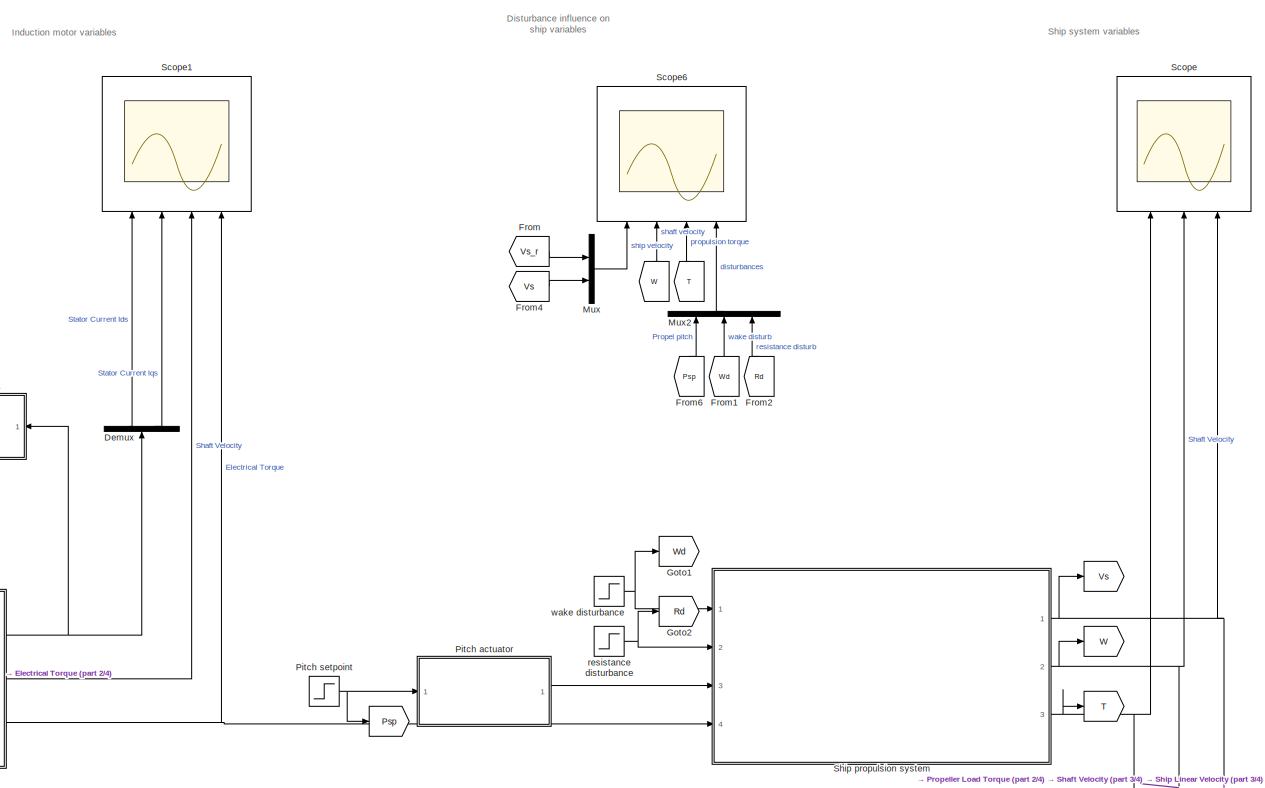
[diagram: root canvas - part 1/4, middle right region]
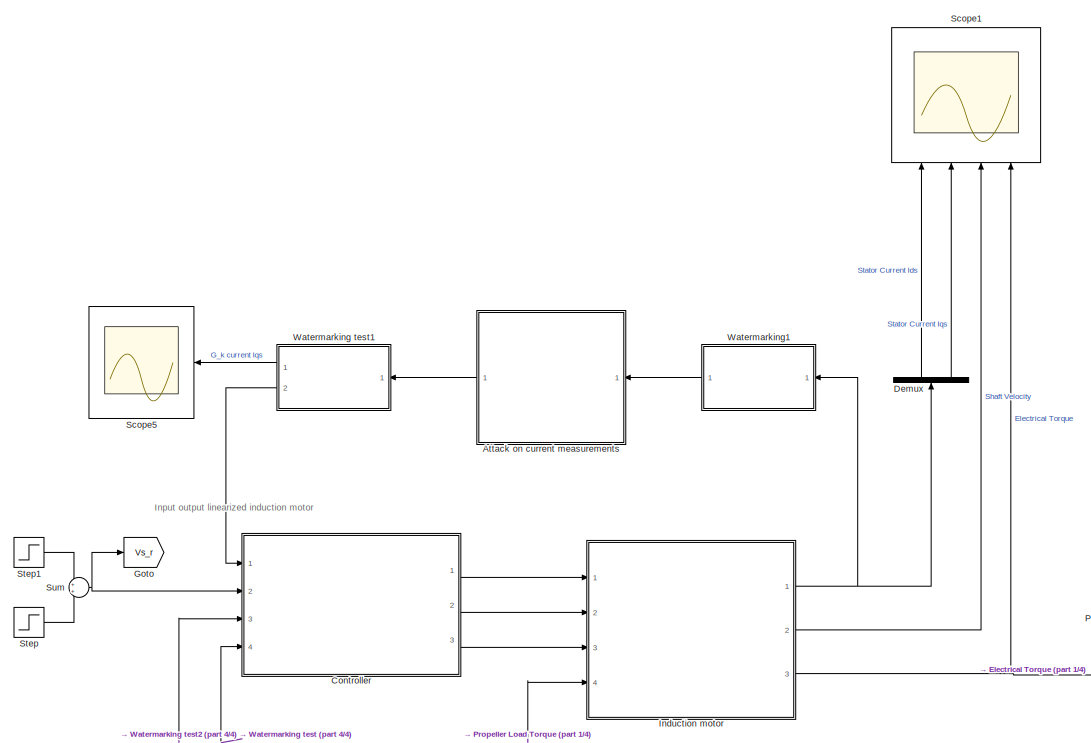
[diagram: root canvas - part 2/4, middle left region]
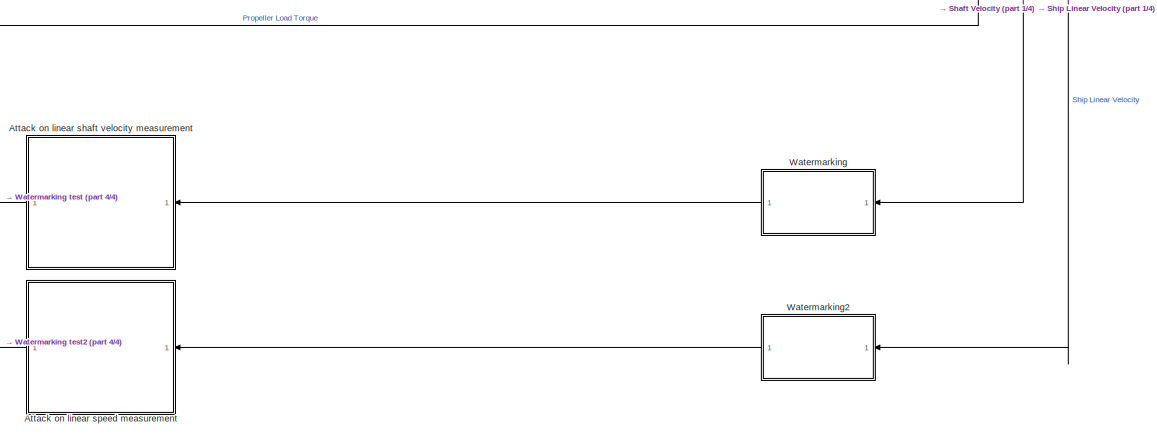
[diagram: root canvas - part 3/4, bottom right region]
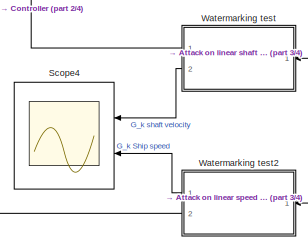
[diagram: root canvas - part 4/4, bottom left region]
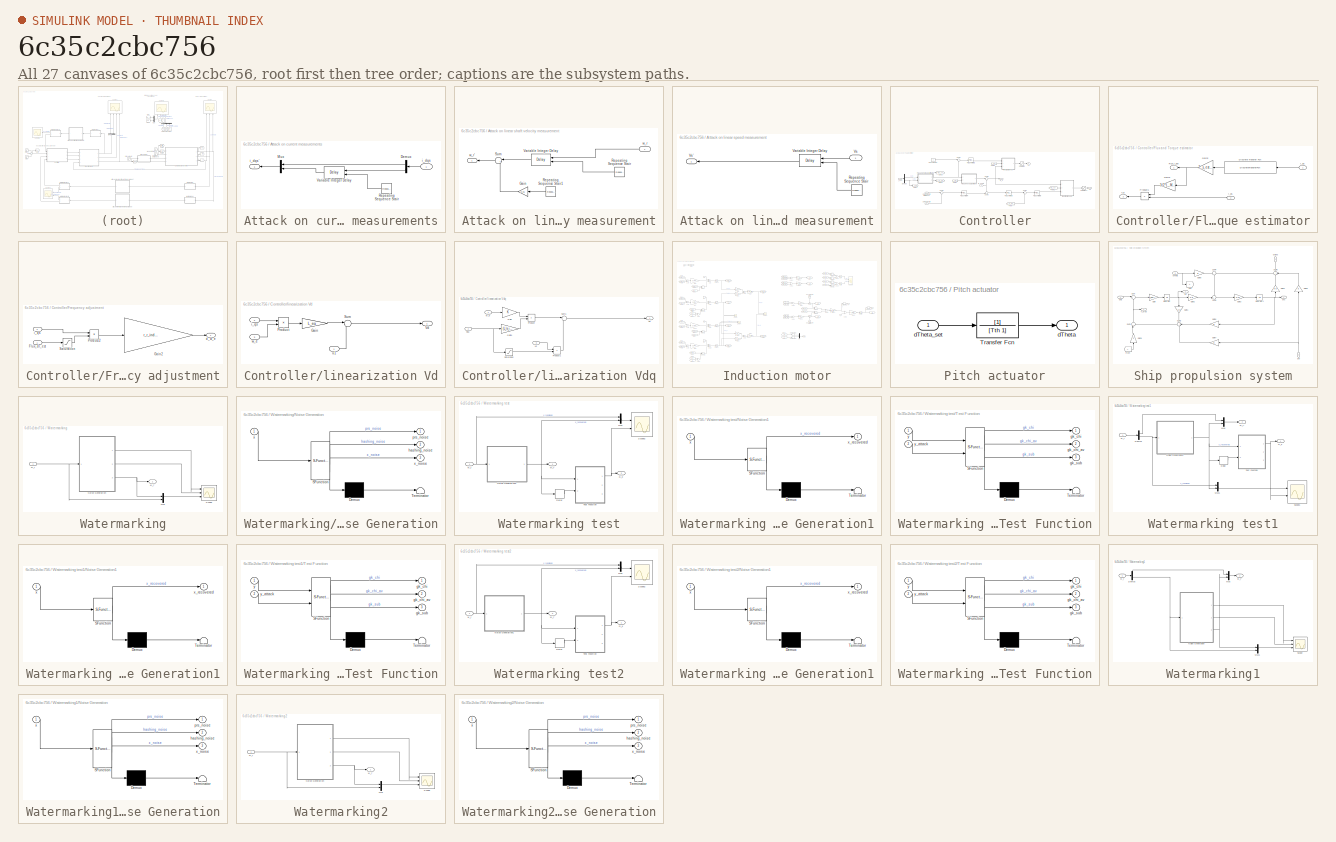
[diagram: thumbnail index - all 27 canvases of the model, root first then tree order]
MODEL slx_6c35c2cbc756
KIND model
CONFIG AbsTol = auto
CONFIG EnableMultiTasking = off
CONFIG FixedStep = 1e-6
CONFIG MaxStep = auto
CONFIG MinStep = auto
CONFIG RelTol = auto
CONFIG SampleTimeConstraint = Unconstrained
CONFIG Solver = VariableStepAuto
CONFIG SolverName = VariableStepAuto
CONFIG StartTime = 0.0
CONFIG StopTime = 500
BLOCK [Goto]  
  GotoTag = T
BLOCK [Goto]   
  GotoTag = Psp
BLOCK [Goto]     
  GotoTag = Vs
BLOCK [Goto]      
  GotoTag = W
BLOCK [From]              
  GotoTag = W
BLOCK [From]                            
  GotoTag = T
BLOCK [SubSystem] Attack on current measurements
  Ports = [1, 1]
  RequestExecContextInheritance = off
  Variant = off
BLOCK [Demux] Attack on current measurements/Demux
  DisplayOption = bar
  Outputs = 2
  Ports = [1, 2]
BLOCK [Mux] Attack on current measurements/Mux
  DisplayOption = bar
  Inputs = 2
  Ports = [2, 1]
BLOCK [Reference] Attack on current measurements/Repeating Sequence Stair  REF=simulink/Sources/Repeating
Sequence
Stair
  Ports = [0, 1]
  SourceBlock = simulink/Sources/Repeating\nSequence\nStair
  SourceType = Repeating Sequence Stair
BLOCK [Delay] Attack on current measurements/Variable Integer Delay
  DelayLengthSource = Input port
  InputPortMap = u0,p1
  Ports = [2, 1]
  SampleTime = Ts
BLOCK [Inport] Attack on current measurements/i_dqs
  IconDisplay = Port number
BLOCK [Outport] Attack on current measurements/i_dqs'
  IconDisplay = Port number
BLOCK [SubSystem] Attack on linear shaft velocity measurement
  Ports = [1, 1]
  RequestExecContextInheritance = off
  Variant = off
BLOCK [Gain] Attack on linear shaft velocity measurement/Gain
  Gain = 0.01
  OutDataTypeStr = Inherit: Inherit via internal rule
  ParamDataTypeStr = Inherit: Inherit via internal rule
  SaturateOnIntegerOverflow = off
BLOCK [Reference] Attack on linear shaft velocity measurement/Repeating Sequence Stair  REF=simulink/Sources/Repeating
Sequence
Stair
  Ports = [0, 1]
  SourceBlock = simulink/Sources/Repeating\nSequence\nStair
  SourceType = Repeating Sequence Stair
BLOCK [Reference] Attack on linear shaft velocity measurement/Repeating Sequence Stair1  REF=simulink/Sources/Repeating
Sequence
Stair
  Ports = [0, 1]
  SourceBlock = simulink/Sources/Repeating\nSequence\nStair
  SourceType = Repeating Sequence Stair
BLOCK [Sum] Attack on linear shaft velocity measurement/Sum
  IconShape = round
  InputSameDT = off
  Inputs = |++
  OutDataTypeStr = Inherit: Inherit via internal rule
  Ports = [2, 1]
  SaturateOnIntegerOverflow = off
BLOCK [Delay] Attack on linear shaft velocity measurement/Variable Integer Delay
  DelayLengthSource = Input port
  InputPortMap = u0,p1
  Ports = [2, 1]
  SampleTime = Ts
BLOCK [Inport] Attack on linear shaft velocity measurement/w_r
  IconDisplay = Port number
BLOCK [Outport] Attack on linear shaft velocity measurement/w_r'
  IconDisplay = Port number
BLOCK [SubSystem] Attack on linear speed measurement
  Ports = [1, 1]
  RequestExecContextInheritance = off
  Variant = off
BLOCK [Reference] Attack on linear speed measurement/Repeating Sequence Stair  REF=simulink/Sources/Repeating
Sequence
Stair
  Ports = [0, 1]
  SourceBlock = simulink/Sources/Repeating\nSequence\nStair
  SourceType = Repeating Sequence Stair
BLOCK [Delay] Attack on linear speed measurement/Variable Integer Delay
  DelayLengthSource = Input port
  InputPortMap = u0,p1
  Ports = [2, 1]
  SampleTime = Ts
BLOCK [Inport] Attack on linear speed measurement/Vs
  IconDisplay = Port number
BLOCK [Outport] Attack on linear speed measurement/Vs'
  IconDisplay = Port number
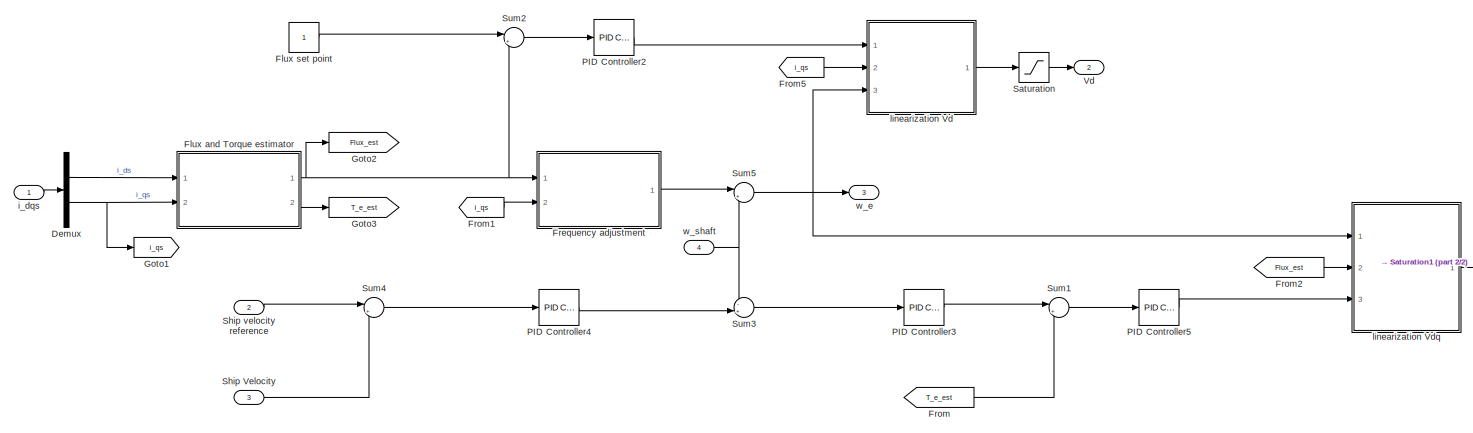
[diagram: Controller - part 1/2, most of the canvas]
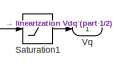
[diagram: Controller - part 2/2, middle right region]
BLOCK [SubSystem] Controller
  Ports = [4, 3]
  RequestExecContextInheritance = off
  Variant = off
BLOCK [Demux] Controller/Demux
  DisplayOption = bar
  Outputs = 2
  Ports = [1, 2]
BLOCK [SubSystem] Controller/Flux and Torque estimator
  Ports = [2, 2]
  RequestExecContextInheritance = off
  Variant = off
BLOCK [DiscreteTransferFcn] Controller/Flux and Torque estimator/Discrete Transfer Fcn
  Denominator = [(2*T_r_ind+T_s_est) (T_s_est-2*T_r_ind)]
  InputPortMap = u0
  Numerator = [1 1]
  Ports = [1, 1]
  SampleTime = T_s_est
BLOCK [Outport] Controller/Flux and Torque estimator/Flux_r_est
  IconDisplay = Port number
BLOCK [Gain] Controller/Flux and Torque estimator/Gain1
  Gain = 3/2*L_M_ind/L_lr_ind*P_ind
  OutDataTypeStr = Inherit: Inherit via internal rule
  ParamDataTypeStr = Inherit: Inherit via internal rule
  SaturateOnIntegerOverflow = off
BLOCK [Gain] Controller/Flux and Torque estimator/Gain2
  Gain = T_s_est*L_M_ind
  OutDataTypeStr = Inherit: Inherit via internal rule
  ParamDataTypeStr = Inherit: Inherit via internal rule
  SaturateOnIntegerOverflow = off
BLOCK [Product] Controller/Flux and Torque estimator/Product1
  InputSameDT = off
  OutDataTypeStr = Inherit: Inherit via internal rule
  Ports = [2, 1]
  RndMeth = Floor
  SaturateOnIntegerOverflow = off
BLOCK [Outport] Controller/Flux and Torque estimator/T_e
  IconDisplay = Port number
  Port = 2
BLOCK [Inport] Controller/Flux and Torque estimator/i_ds
  IconDisplay = Port number
BLOCK [Inport] Controller/Flux and Torque estimator/i_qs
  IconDisplay = Port number
  Port = 2
BLOCK [Constant] Controller/Flux set point
BLOCK [SubSystem] Controller/Frequency adjustment
  Ports = [2, 1]
  RequestExecContextInheritance = off
  Variant = off
BLOCK [Inport] Controller/Frequency adjustment/Flux_dr_est
  IconDisplay = Port number
BLOCK [Gain] Controller/Frequency adjustment/Gain2
  Gain = r_r_ind*L_M_ind/(L_M_ind+L_lr_ind)
  OutDataTypeStr = Inherit: Inherit via internal rule
  ParamDataTypeStr = Inherit: Inherit via internal rule
  SaturateOnIntegerOverflow = off
BLOCK [Product] Controller/Frequency adjustment/Product2
  InputSameDT = off
  Inputs = */
  OutDataTypeStr = Inherit: Inherit via internal rule
  Ports = [2, 1]
  RndMeth = Floor
  SaturateOnIntegerOverflow = off
BLOCK [Saturate] Controller/Frequency adjustment/Saturation
  InputPortMap = u0
  LowerLimit = 1e-5
  Ports = [1, 1]
  UpperLimit = inf
BLOCK [Outport] Controller/Frequency adjustment/d_w_e
  IconDisplay = Port number
BLOCK [Inport] Controller/Frequency adjustment/i_qs
  IconDisplay = Port number
  Port = 2
BLOCK [From] Controller/From
  GotoTag = T_e_est
BLOCK [From] Controller/From1
  GotoTag = i_qs
BLOCK [From] Controller/From2
  GotoTag = Flux_est
BLOCK [From] Controller/From5
  GotoTag = i_qs
BLOCK [Goto] Controller/Goto1
  GotoTag = i_qs
BLOCK [Goto] Controller/Goto2
  GotoTag = Flux_est
BLOCK [Goto] Controller/Goto3
  GotoTag = T_e_est
BLOCK [Reference] Controller/PID Controller2  REF=simulink/Continuous/PID Controller
  Ports = [1, 1]
  SourceBlock = simulink/Continuous/PID Controller
  SourceType = PID 1dof
BLOCK [Reference] Controller/PID Controller3  REF=simulink/Continuous/PID Controller
  Ports = [1, 1]
  SourceBlock = simulink/Continuous/PID Controller
  SourceType = PID 1dof
BLOCK [Reference] Controller/PID Controller4  REF=simulink/Continuous/PID Controller
  Ports = [1, 1]
  SourceBlock = simulink/Continuous/PID Controller
  SourceType = PID 1dof
BLOCK [Reference] Controller/PID Controller5  REF=simulink/Continuous/PID Controller
  Ports = [1, 1]
  SourceBlock = simulink/Continuous/PID Controller
  SourceType = PID 1dof
BLOCK [Saturate] Controller/Saturation
  InputPortMap = u0
  LowerLimit = -100
  Ports = [1, 1]
  UpperLimit = 100
BLOCK [Saturate] Controller/Saturation1
  InputPortMap = u0
  LowerLimit = -100
  Ports = [1, 1]
  UpperLimit = 100
BLOCK [Inport] Controller/Ship Velocity
  IconDisplay = Port number
  Port = 3
BLOCK [Inport] Controller/Ship velocity reference
  IconDisplay = Port number
  Port = 2
BLOCK [Sum] Controller/Sum1
  IconShape = round
  InputSameDT = off
  Inputs = |+-
  OutDataTypeStr = Inherit: Inherit via internal rule
  Ports = [2, 1]
  SaturateOnIntegerOverflow = off
BLOCK [Sum] Controller/Sum2
  IconShape = round
  InputSameDT = off
  Inputs = |+-
  OutDataTypeStr = Inherit: Inherit via internal rule
  Ports = [2, 1]
  SaturateOnIntegerOverflow = off
BLOCK [Sum] Controller/Sum3
  IconShape = round
  InputSameDT = off
  Inputs = -+|
  OutDataTypeStr = Inherit: Inherit via internal rule
  Ports = [2, 1]
  SaturateOnIntegerOverflow = off
BLOCK [Sum] Controller/Sum4
  IconShape = round
  InputSameDT = off
  Inputs = |+-
  OutDataTypeStr = Inherit: Inherit via internal rule
  Ports = [2, 1]
  SaturateOnIntegerOverflow = off
BLOCK [Sum] Controller/Sum5
  IconShape = round
  InputSameDT = off
  Inputs = |++
  OutDataTypeStr = Inherit: Inherit via internal rule
  Ports = [2, 1]
  SaturateOnIntegerOverflow = off
BLOCK [Outport] Controller/Vd
  IconDisplay = Port number
  Port = 2
BLOCK [Outport] Controller/Vq
  IconDisplay = Port number
BLOCK [Inport] Controller/i_dqs
  IconDisplay = Port number
BLOCK [SubSystem] Controller/linearization Vd
  Ports = [3, 1]
  RequestExecContextInheritance = off
  Variant = off
BLOCK [Gain] Controller/linearization Vd/Gain
  Gain = L_eq
  OutDataTypeStr = Inherit: Inherit via internal rule
  ParamDataTypeStr = Inherit: Inherit via internal rule
  SaturateOnIntegerOverflow = off
BLOCK [Product] Controller/linearization Vd/Product
  InputSameDT = off
  OutDataTypeStr = Inherit: Inherit via internal rule
  Ports = [2, 1]
  RndMeth = Floor
  SaturateOnIntegerOverflow = off
BLOCK [Sum] Controller/linearization Vd/Sum
  IconShape = round
  InputSameDT = off
  Inputs = |-+
  OutDataTypeStr = Inherit: Inherit via internal rule
  Ports = [2, 1]
  SaturateOnIntegerOverflow = off
BLOCK [Outport] Controller/linearization Vd/Vd
  IconDisplay = Port number
BLOCK [Inport] Controller/linearization Vd/i_qs
  IconDisplay = Port number
  Port = 2
BLOCK [Inport] Controller/linearization Vd/u1
  IconDisplay = Port number
BLOCK [Inport] Controller/linearization Vd/w_e
  IconDisplay = Port number
  Port = 3
BLOCK [SubSystem] Controller/linearization Vdq
  Ports = [3, 1]
  RequestExecContextInheritance = off
  Variant = off
BLOCK [Inport] Controller/linearization Vdq/Flux
  IconDisplay = Port number
  Port = 2
BLOCK [Gain] Controller/linearization Vdq/Gain
  OutDataTypeStr = Inherit: Inherit via internal rule
  ParamDataTypeStr = Inherit: Inherit via internal rule
  SaturateOnIntegerOverflow = off
BLOCK [Gain] Controller/linearization Vdq/Gain1
  Gain = (L_ls_ind+L_M_ind)/L_M_ind
  OutDataTypeStr = Inherit: Inherit via internal rule
  ParamDataTypeStr = Inherit: Inherit via internal rule
  SaturateOnIntegerOverflow = off
BLOCK [Product] Controller/linearization Vdq/Product
  InputSameDT = off
  OutDataTypeStr = Inherit: Inherit via internal rule
  Ports = [2, 1]
  RndMeth = Floor
  SaturateOnIntegerOverflow = off
BLOCK [Product] Controller/linearization Vdq/Product1
  InputSameDT = off
  Inputs = */
  OutDataTypeStr = Inherit: Inherit via internal rule
  Ports = [2, 1]
  RndMeth = Floor
  SaturateOnIntegerOverflow = off
BLOCK [Saturate] Controller/linearization Vdq/Saturation
  InputPortMap = u0
  LowerLimit = 1e-5
  Ports = [1, 1]
  UpperLimit = inf
BLOCK [Sum] Controller/linearization Vdq/Sum1
  IconShape = round
  InputSameDT = off
  Inputs = |++
  OutDataTypeStr = Inherit: Inherit via internal rule
  Ports = [2, 1]
  SaturateOnIntegerOverflow = off
BLOCK [Outport] Controller/linearization Vdq/Vq
  IconDisplay = Port number
BLOCK [Inport] Controller/linearization Vdq/u2
  IconDisplay = Port number
  Port = 3
BLOCK [Inport] Controller/linearization Vdq/w_e
  IconDisplay = Port number
BLOCK [Outport] Controller/w_e
  IconDisplay = Port number
  Port = 3
BLOCK [Inport] Controller/w_shaft
  IconDisplay = Port number
  Port = 4
BLOCK [Demux] Demux
  DisplayOption = bar
  Outputs = 2
  Ports = [1, 2]
BLOCK [From] From
  GotoTag = Vs_r
BLOCK [From] From1
  GotoTag = Wd
BLOCK [From] From2
  GotoTag = Rd
BLOCK [From] From4
  GotoTag = Vs
BLOCK [From] From6
  GotoTag = Psp
BLOCK [Goto] Goto
  GotoTag = Vs_r
BLOCK [Goto] Goto1
  GotoTag = Wd
BLOCK [Goto] Goto2
  GotoTag = Rd
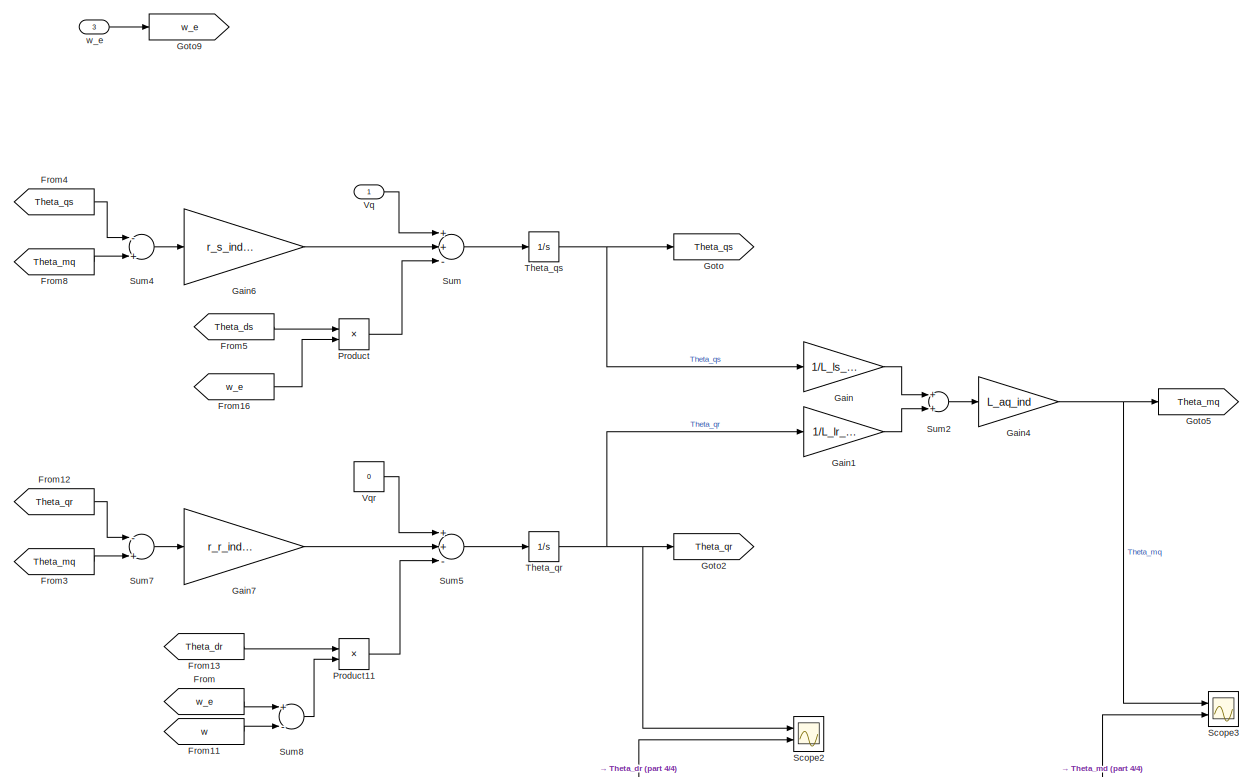
[diagram: Induction motor - part 1/4, top left region]
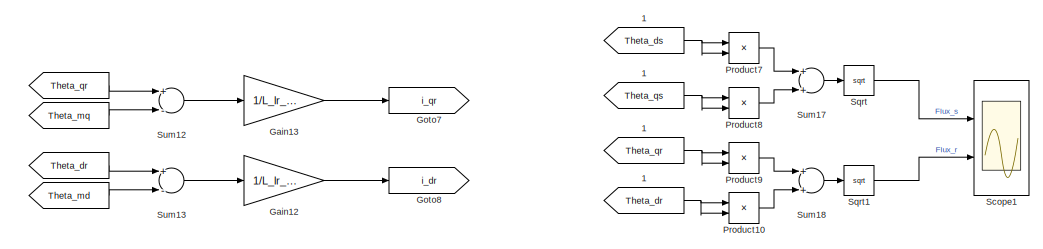
[diagram: Induction motor - part 2/4, top right region]
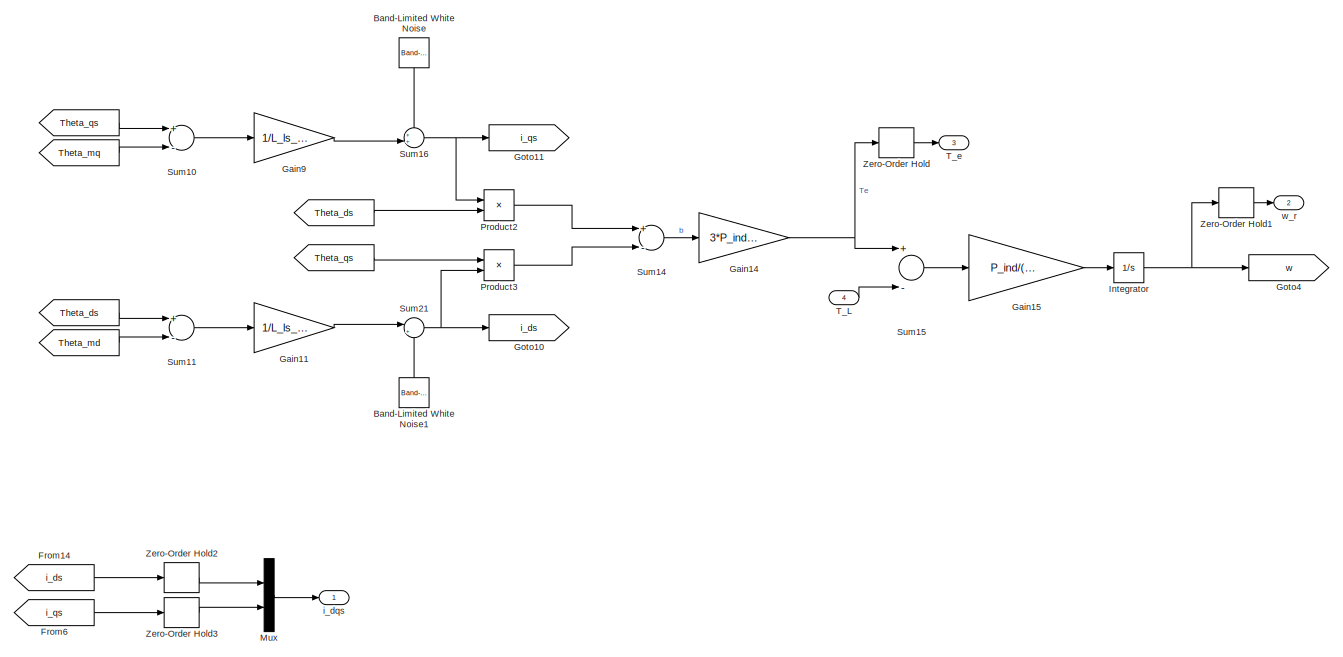
[diagram: Induction motor - part 3/4, middle right region]
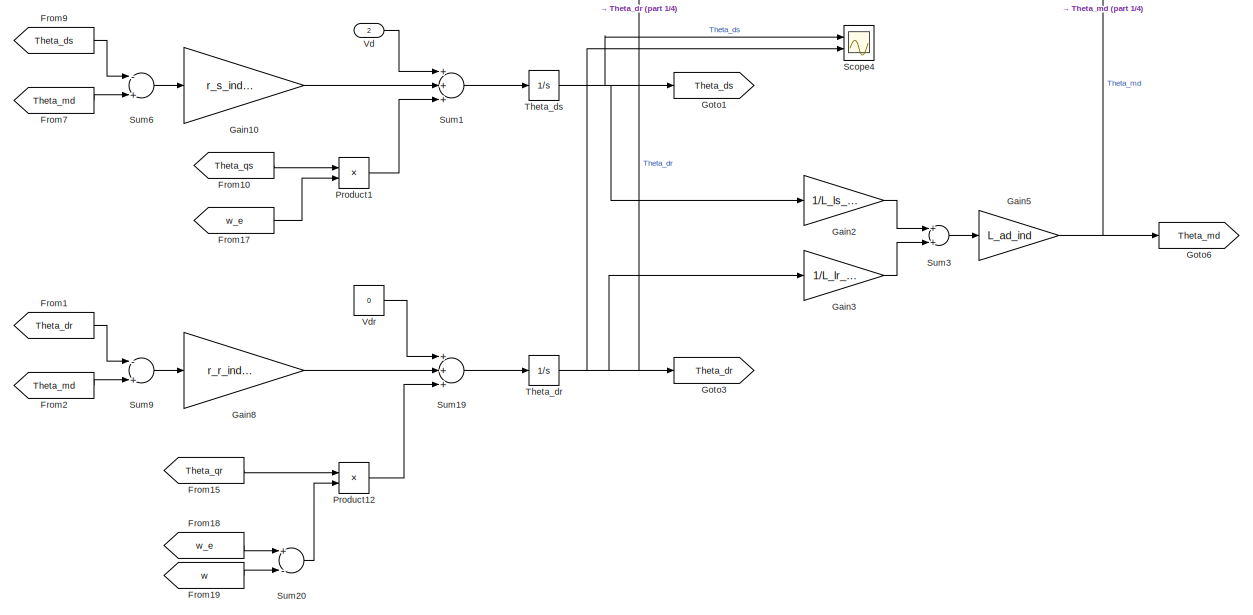
[diagram: Induction motor - part 4/4, bottom left region]
BLOCK [SubSystem] Induction motor
  Ports = [4, 3]
  RequestExecContextInheritance = off
  Variant = off
BLOCK [From] Induction motor/ 
  GotoTag = Theta_ds
BLOCK [From] Induction motor/  
  GotoTag = Theta_mq
BLOCK [From] Induction motor/   
  GotoTag = Theta_qs
BLOCK [From] Induction motor/    
  Commented = on
  GotoTag = Theta_dr
BLOCK [From] Induction motor/     
  GotoTag = Theta_md
BLOCK [From] Induction motor/         
  Commented = on
  GotoTag = Theta_md
BLOCK [From] Induction motor/          
  Commented = on
  GotoTag = Theta_qr
BLOCK [From] Induction motor/            
  Commented = on
  GotoTag = Theta_mq
BLOCK [From] Induction motor/                   
  GotoTag = Theta_qs
BLOCK [From] Induction motor/                         
  GotoTag = Theta_ds
BLOCK [From] Induction motor/          1
  Commented = on
  GotoTag = Theta_qr
BLOCK [From] Induction motor/    1
  Commented = on
  GotoTag = Theta_dr
BLOCK [From] Induction motor/   1
  Commented = on
  GotoTag = Theta_qs
BLOCK [From] Induction motor/ 1
  Commented = on
  GotoTag = Theta_ds
BLOCK [Reference] Induction motor/Band-Limited White Noise  REF=simulink/Sources/Band-Limited
White Noise
  Ports = [0, 1]
  SourceBlock = simulink/Sources/Band-Limited\nWhite Noise
  SourceType = Band-Limited White Noise.
BLOCK [Reference] Induction motor/Band-Limited White Noise1  REF=simulink/Sources/Band-Limited
White Noise
  Ports = [0, 1]
  SourceBlock = simulink/Sources/Band-Limited\nWhite Noise
  SourceType = Band-Limited White Noise.
BLOCK [From] Induction motor/From
  GotoTag = w_e
BLOCK [From] Induction motor/From1
  GotoTag = Theta_dr
BLOCK [From] Induction motor/From10
  GotoTag = Theta_qs
BLOCK [From] Induction motor/From11
  GotoTag = w
BLOCK [From] Induction motor/From12
  GotoTag = Theta_qr
BLOCK [From] Induction motor/From13
  GotoTag = Theta_dr
BLOCK [From] Induction motor/From14
  GotoTag = i_ds
BLOCK [From] Induction motor/From15
  GotoTag = Theta_qr
BLOCK [From] Induction motor/From16
  GotoTag = w_e
BLOCK [From] Induction motor/From17
  GotoTag = w_e
BLOCK [From] Induction motor/From18
  GotoTag = w_e
BLOCK [From] Induction motor/From19
  GotoTag = w
BLOCK [From] Induction motor/From2
  GotoTag = Theta_md
BLOCK [From] Induction motor/From3
  GotoTag = Theta_mq
BLOCK [From] Induction motor/From4
  GotoTag = Theta_qs
BLOCK [From] Induction motor/From5
  GotoTag = Theta_ds
BLOCK [From] Induction motor/From6
  GotoTag = i_qs
BLOCK [From] Induction motor/From7
  GotoTag = Theta_md
BLOCK [From] Induction motor/From8
  GotoTag = Theta_mq
BLOCK [From] Induction motor/From9
  GotoTag = Theta_ds
BLOCK [Gain] Induction motor/Gain
  Gain = 1/L_ls_ind
  OutDataTypeStr = Inherit: Inherit via internal rule
  ParamDataTypeStr = Inherit: Inherit via internal rule
  SaturateOnIntegerOverflow = off
BLOCK [Gain] Induction motor/Gain1
  Gain = 1/L_lr_ind
  OutDataTypeStr = Inherit: Inherit via internal rule
  ParamDataTypeStr = Inherit: Inherit via internal rule
  SaturateOnIntegerOverflow = off
BLOCK [Gain] Induction motor/Gain10
  Gain = r_s_ind/L_ls_ind
  OutDataTypeStr = Inherit: Inherit via internal rule
  ParamDataTypeStr = Inherit: Inherit via internal rule
  SaturateOnIntegerOverflow = off
BLOCK [Gain] Induction motor/Gain11
  Gain = 1/L_ls_ind
  OutDataTypeStr = Inherit: Inherit via internal rule
  ParamDataTypeStr = Inherit: Inherit via internal rule
  SaturateOnIntegerOverflow = off
BLOCK [Gain] Induction motor/Gain12
  Commented = on
  Gain = 1/L_lr_ind
  OutDataTypeStr = Inherit: Inherit via internal rule
  ParamDataTypeStr = Inherit: Inherit via internal rule
  SaturateOnIntegerOverflow = off
BLOCK [Gain] Induction motor/Gain13
  Commented = on
  Gain = 1/L_lr_ind
  OutDataTypeStr = Inherit: Inherit via internal rule
  ParamDataTypeStr = Inherit: Inherit via internal rule
  SaturateOnIntegerOverflow = off
BLOCK [Gain] Induction motor/Gain14
  Gain = 3*P_ind/4
  OutDataTypeStr = Inherit: Inherit via internal rule
  ParamDataTypeStr = Inherit: Inherit via internal rule
  SaturateOnIntegerOverflow = off
BLOCK [Gain] Induction motor/Gain15
  Gain = P_ind/(2*(J_ind+Tn))
  OutDataTypeStr = Inherit: Inherit via internal rule
  ParamDataTypeStr = Inherit: Inherit via internal rule
  SaturateOnIntegerOverflow = off
BLOCK [Gain] Induction motor/Gain2
  Gain = 1/L_ls_ind
  OutDataTypeStr = Inherit: Inherit via internal rule
  ParamDataTypeStr = Inherit: Inherit via internal rule
  SaturateOnIntegerOverflow = off
BLOCK [Gain] Induction motor/Gain3
  Gain = 1/L_lr_ind
  OutDataTypeStr = Inherit: Inherit via internal rule
  ParamDataTypeStr = Inherit: Inherit via internal rule
  SaturateOnIntegerOverflow = off
BLOCK [Gain] Induction motor/Gain4
  Gain = L_aq_ind
  OutDataTypeStr = Inherit: Inherit via internal rule
  ParamDataTypeStr = Inherit: Inherit via internal rule
  SaturateOnIntegerOverflow = off
BLOCK [Gain] Induction motor/Gain5
  Gain = L_ad_ind
  OutDataTypeStr = Inherit: Inherit via internal rule
  ParamDataTypeStr = Inherit: Inherit via internal rule
  SaturateOnIntegerOverflow = off
BLOCK [Gain] Induction motor/Gain6
  Gain = r_s_ind/L_ls_ind
  OutDataTypeStr = Inherit: Inherit via internal rule
  ParamDataTypeStr = Inherit: Inherit via internal rule
  SaturateOnIntegerOverflow = off
BLOCK [Gain] Induction motor/Gain7
  Gain = r_r_ind/L_lr_ind
  OutDataTypeStr = Inherit: Inherit via internal rule
  ParamDataTypeStr = Inherit: Inherit via internal rule
  SaturateOnIntegerOverflow = off
BLOCK [Gain] Induction motor/Gain8
  Gain = r_r_ind/L_lr_ind
  OutDataTypeStr = Inherit: Inherit via internal rule
  ParamDataTypeStr = Inherit: Inherit via internal rule
  SaturateOnIntegerOverflow = off
BLOCK [Gain] Induction motor/Gain9
  Gain = 1/L_ls_ind
  OutDataTypeStr = Inherit: Inherit via internal rule
  ParamDataTypeStr = Inherit: Inherit via internal rule
  SaturateOnIntegerOverflow = off
BLOCK [Goto] Induction motor/Goto
  GotoTag = Theta_qs
BLOCK [Goto] Induction motor/Goto1
  GotoTag = Theta_ds
BLOCK [Goto] Induction motor/Goto10
  GotoTag = i_ds
BLOCK [Goto] Induction motor/Goto11
  GotoTag = i_qs
BLOCK [Goto] Induction motor/Goto2
  GotoTag = Theta_qr
BLOCK [Goto] Induction motor/Goto3
  GotoTag = Theta_dr
BLOCK [Goto] Induction motor/Goto4
  GotoTag = w
BLOCK [Goto] Induction motor/Goto5
  GotoTag = Theta_mq
BLOCK [Goto] Induction motor/Goto6
  GotoTag = Theta_md
BLOCK [Goto] Induction motor/Goto7
  Commented = on
  GotoTag = i_qr
BLOCK [Goto] Induction motor/Goto8
  Commented = on
  GotoTag = i_dr
BLOCK [Goto] Induction motor/Goto9
  GotoTag = w_e
BLOCK [Integrator] Induction motor/Integrator
  Ports = [1, 1]
BLOCK [Mux] Induction motor/Mux
  DisplayOption = bar
  Inputs = 2
  Ports = [2, 1]
BLOCK [Product] Induction motor/Product
  InputSameDT = off
  OutDataTypeStr = Inherit: Inherit via internal rule
  Ports = [2, 1]
  RndMeth = Floor
  SaturateOnIntegerOverflow = off
BLOCK [Product] Induction motor/Product1
  InputSameDT = off
  OutDataTypeStr = Inherit: Inherit via internal rule
  Ports = [2, 1]
  RndMeth = Floor
  SaturateOnIntegerOverflow = off
BLOCK [Product] Induction motor/Product10
  Commented = on
  InputSameDT = off
  OutDataTypeStr = Inherit: Inherit via internal rule
  Ports = [2, 1]
  RndMeth = Floor
  SaturateOnIntegerOverflow = off
BLOCK [Product] Induction motor/Product11
  InputSameDT = off
  OutDataTypeStr = Inherit: Inherit via internal rule
  Ports = [2, 1]
  RndMeth = Floor
  SaturateOnIntegerOverflow = off
BLOCK [Product] Induction motor/Product12
  InputSameDT = off
  OutDataTypeStr = Inherit: Inherit via internal rule
  Ports = [2, 1]
  RndMeth = Floor
  SaturateOnIntegerOverflow = off
BLOCK [Product] Induction motor/Product2
  InputSameDT = off
  OutDataTypeStr = Inherit: Inherit via internal rule
  Ports = [2, 1]
  RndMeth = Floor
  SaturateOnIntegerOverflow = off
BLOCK [Product] Induction motor/Product3
  InputSameDT = off
  OutDataTypeStr = Inherit: Inherit via internal rule
  Ports = [2, 1]
  RndMeth = Floor
  SaturateOnIntegerOverflow = off
BLOCK [Product] Induction motor/Product7
  Commented = on
  InputSameDT = off
  OutDataTypeStr = Inherit: Inherit via internal rule
  Ports = [2, 1]
  RndMeth = Floor
  SaturateOnIntegerOverflow = off
BLOCK [Product] Induction motor/Product8
  Commented = on
  InputSameDT = off
  OutDataTypeStr = Inherit: Inherit via internal rule
  Ports = [2, 1]
  RndMeth = Floor
  SaturateOnIntegerOverflow = off
BLOCK [Product] Induction motor/Product9
  Commented = on
  InputSameDT = off
  OutDataTypeStr = Inherit: Inherit via internal rule
  Ports = [2, 1]
  RndMeth = Floor
  SaturateOnIntegerOverflow = off
BLOCK [Scope] Induction motor/Scope1
  NumInputPorts = 2
  Ports = [2]
  ScopeSpecificationString = Simulink.scopes.TimeScopeBlockCfg('CurrentConfiguration', extmgr.ConfigurationSet(extmgr.Configuration('Core','General UI',true),extmgr.Configuration('Core','Source UI',true),extmgr.Configuration('Sources','WiredSimulink',true,'DataLoggingVariableName','ScopeData3'),extmgr.Configuration('Visuals','Time Domain',true,'SerializedDisplays',{struct('MinYLimReal','-0.03091','MaxYLimReal','0.04058','YLab...<+2046ch>
BLOCK [Scope] Induction motor/Scope2
  NumInputPorts = 2
  Ports = [2]
  ScopeSpecificationString = Simulink.scopes.TimeScopeBlockCfg('CurrentConfiguration', extmgr.ConfigurationSet(extmgr.Configuration('Core','General UI',true),extmgr.Configuration('Core','Source UI',true),extmgr.Configuration('Sources','WiredSimulink',true,'DataLoggingVariableName','ScopeData1'),extmgr.Configuration('Visuals','Time Domain',true,'SerializedDisplays',{struct('MinYLimReal','-0.06172','MaxYLimReal','0.01641','YLab...<+2046ch>
BLOCK [Scope] Induction motor/Scope3
  NumInputPorts = 2
  Ports = [2]
  ScopeSpecificationString = Simulink.scopes.TimeScopeBlockCfg('CurrentConfiguration', extmgr.ConfigurationSet(extmgr.Configuration('Core','General UI',true),extmgr.Configuration('Core','Source UI',true),extmgr.Configuration('Sources','WiredSimulink',true,'DataLoggingVariableName','ScopeData5'),extmgr.Configuration('Visuals','Time Domain',true,'SerializedDisplays',{struct('MinYLimReal','-0.03249','MaxYLimReal','0.01039','YLab...<+2060ch>
BLOCK [Scope] Induction motor/Scope4
  NumInputPorts = 2
  Ports = [2]
  ScopeSpecificationString = Simulink.scopes.TimeScopeBlockCfg('CurrentConfiguration', extmgr.ConfigurationSet(extmgr.Configuration('Core','General UI',true),extmgr.Configuration('Core','Source UI',true),extmgr.Configuration('Sources','WiredSimulink',true,'DataLoggingVariableName','ScopeData8'),extmgr.Configuration('Visuals','Time Domain',true,'SerializedDisplays',{struct('MinYLimReal','3.68285','MaxYLimReal','3.68321','YLabe...<+2037ch>
BLOCK [Sqrt] Induction motor/Sqrt
  Commented = on
BLOCK [Sqrt] Induction motor/Sqrt1
  Commented = on
BLOCK [Sum] Induction motor/Sum
  InputSameDT = off
  Inputs = ++-
  OutDataTypeStr = Inherit: Inherit via internal rule
  Ports = [3, 1]
  SaturateOnIntegerOverflow = off
BLOCK [Sum] Induction motor/Sum1
  InputSameDT = off
  Inputs = +++
  OutDataTypeStr = Inherit: Inherit via internal rule
  Ports = [3, 1]
  SaturateOnIntegerOverflow = off
BLOCK [Sum] Induction motor/Sum10
  InputSameDT = off
  Inputs = +-
  OutDataTypeStr = Inherit: Inherit via internal rule
  Ports = [2, 1]
  SaturateOnIntegerOverflow = off
BLOCK [Sum] Induction motor/Sum11
  InputSameDT = off
  Inputs = +-
  OutDataTypeStr = Inherit: Inherit via internal rule
  Ports = [2, 1]
  SaturateOnIntegerOverflow = off
BLOCK [Sum] Induction motor/Sum12
  Commented = on
  InputSameDT = off
  Inputs = +-
  OutDataTypeStr = Inherit: Inherit via internal rule
  Ports = [2, 1]
  SaturateOnIntegerOverflow = off
BLOCK [Sum] Induction motor/Sum13
  Commented = on
  InputSameDT = off
  Inputs = +-
  OutDataTypeStr = Inherit: Inherit via internal rule
  Ports = [2, 1]
  SaturateOnIntegerOverflow = off
BLOCK [Sum] Induction motor/Sum14
  InputSameDT = off
  Inputs = +-
  OutDataTypeStr = Inherit: Inherit via internal rule
  Ports = [2, 1]
  SaturateOnIntegerOverflow = off
BLOCK [Sum] Induction motor/Sum15
  InputSameDT = off
  Inputs = +-
  OutDataTypeStr = Inherit: Inherit via internal rule
  Ports = [2, 1]
  SaturateOnIntegerOverflow = off
BLOCK [Sum] Induction motor/Sum16
  IconShape = round
  InputSameDT = off
  Inputs = ++|
  OutDataTypeStr = Inherit: Inherit via internal rule
  Ports = [2, 1]
  SaturateOnIntegerOverflow = off
BLOCK [Sum] Induction motor/Sum17
  Commented = on
  InputSameDT = off
  OutDataTypeStr = Inherit: Inherit via internal rule
  Ports = [2, 1]
  SaturateOnIntegerOverflow = off
BLOCK [Sum] Induction motor/Sum18
  Commented = on
  InputSameDT = off
  OutDataTypeStr = Inherit: Inherit via internal rule
  Ports = [2, 1]
  SaturateOnIntegerOverflow = off
BLOCK [Sum] Induction motor/Sum19
  InputSameDT = off
  Inputs = +++
  OutDataTypeStr = Inherit: Inherit via internal rule
  Ports = [3, 1]
  SaturateOnIntegerOverflow = off
BLOCK [Sum] Induction motor/Sum2
  InputSameDT = off
  OutDataTypeStr = Inherit: Inherit via internal rule
  Ports = [2, 1]
  SaturateOnIntegerOverflow = off
BLOCK [Sum] Induction motor/Sum20
  InputSameDT = off
  Inputs = +-
  OutDataTypeStr = Inherit: Inherit via internal rule
  Ports = [2, 1]
  SaturateOnIntegerOverflow = off
BLOCK [Sum] Induction motor/Sum21
  IconShape = round
  InputSameDT = off
  Inputs = |++
  OutDataTypeStr = Inherit: Inherit via internal rule
  Ports = [2, 1]
  SaturateOnIntegerOverflow = off
BLOCK [Sum] Induction motor/Sum3
  InputSameDT = off
  OutDataTypeStr = Inherit: Inherit via internal rule
  Ports = [2, 1]
  SaturateOnIntegerOverflow = off
BLOCK [Sum] Induction motor/Sum4
  InputSameDT = off
  Inputs = -+
  OutDataTypeStr = Inherit: Inherit via internal rule
  Ports = [2, 1]
  SaturateOnIntegerOverflow = off
BLOCK [Sum] Induction motor/Sum5
  InputSameDT = off
  Inputs = ++-
  OutDataTypeStr = Inherit: Inherit via internal rule
  Ports = [3, 1]
  SaturateOnIntegerOverflow = off
BLOCK [Sum] Induction motor/Sum6
  InputSameDT = off
  Inputs = -+
  OutDataTypeStr = Inherit: Inherit via internal rule
  Ports = [2, 1]
  SaturateOnIntegerOverflow = off
BLOCK [Sum] Induction motor/Sum7
  InputSameDT = off
  Inputs = -+
  OutDataTypeStr = Inherit: Inherit via internal rule
  Ports = [2, 1]
  SaturateOnIntegerOverflow = off
BLOCK [Sum] Induction motor/Sum8
  InputSameDT = off
  Inputs = +-
  OutDataTypeStr = Inherit: Inherit via internal rule
  Ports = [2, 1]
  SaturateOnIntegerOverflow = off
BLOCK [Sum] Induction motor/Sum9
  InputSameDT = off
  Inputs = -+
  OutDataTypeStr = Inherit: Inherit via internal rule
  Ports = [2, 1]
  SaturateOnIntegerOverflow = off
BLOCK [Inport] Induction motor/T_L
  IconDisplay = Port number
  Port = 4
BLOCK [Outport] Induction motor/T_e
  IconDisplay = Port number
  Port = 3
BLOCK [Integrator] Induction motor/Theta_dr
  InitialCondition = 1
  Ports = [1, 1]
BLOCK [Integrator] Induction motor/Theta_ds
  InitialCondition = 4
  Ports = [1, 1]
BLOCK [Integrator] Induction motor/Theta_qr
  Ports = [1, 1]
BLOCK [Integrator] Induction motor/Theta_qs
  Ports = [1, 1]
BLOCK [Inport] Induction motor/Vd
  IconDisplay = Port number
  Port = 2
BLOCK [Constant] Induction motor/Vdr
  Value = 0
BLOCK [Inport] Induction motor/Vq
  IconDisplay = Port number
BLOCK [Constant] Induction motor/Vqr
  Value = 0
BLOCK [ZeroOrderHold] Induction motor/Zero-Order Hold
  SampleTime = Ts
BLOCK [ZeroOrderHold] Induction motor/Zero-Order Hold1
  SampleTime = Ts
BLOCK [ZeroOrderHold] Induction motor/Zero-Order Hold2
  SampleTime = Ts
BLOCK [ZeroOrderHold] Induction motor/Zero-Order Hold3
  SampleTime = Ts
BLOCK [Outport] Induction motor/i_dqs
  IconDisplay = Port number
BLOCK [Inport] Induction motor/w_e
  IconDisplay = Port number
  Port = 3
BLOCK [Outport] Induction motor/w_r
  IconDisplay = Port number
  Port = 2
BLOCK [Mux] Mux
  DisplayOption = bar
  Inputs = 2
  Ports = [2, 1]
BLOCK [Mux] Mux2
  DisplayOption = bar
  Inputs = 3
  Ports = [3, 1]
BLOCK [SubSystem] Pitch actuator
  Ports = [1, 1]
  RequestExecContextInheritance = off
  Variant = off
BLOCK [TransferFcn] Pitch actuator/Transfer Fcn
  Denominator = [Tth 1]
BLOCK [Outport] Pitch actuator/dTheta
  IconDisplay = Port number
BLOCK [Inport] Pitch actuator/dTheta_set
  IconDisplay = Port number
BLOCK [Step] Pitch setpoint
  After = -0.5
  SampleTime = 0
  Time = 400
BLOCK [Scope] Scope
  NumInputPorts = 3
  Ports = [3]
  ScopeSpecificationString = Simulink.scopes.TimeScopeBlockCfg('CurrentConfiguration', extmgr.ConfigurationSet(extmgr.Configuration('Core','General UI',true),extmgr.Configuration('Core','Source UI',true),extmgr.Configuration('Sources','WiredSimulink',true),extmgr.Configuration('Visuals','Time Domain',true,'SerializedDisplays',{struct('MinYLimReal','-0.7251','MaxYLimReal','6.50404','YLabelReal','','MinYLimMag','0.00000','MaxYL...<+2712ch>
BLOCK [Scope] Scope1
  NumInputPorts = 4
  Ports = [4]
  ScopeSpecificationString = Simulink.scopes.TimeScopeBlockCfg('CurrentConfiguration', extmgr.ConfigurationSet(extmgr.Configuration('Core','General UI',true),extmgr.Configuration('Core','Source UI',true),extmgr.Configuration('Sources','WiredSimulink',true,'DataLoggingVariableName','ScopeData2'),extmgr.Configuration('Visuals','Time Domain',true,'SerializedDisplays',{struct('MinYLimReal','97.71822','MaxYLimReal','209.61092','YL...<+3516ch>
BLOCK [Scope] Scope4
  NumInputPorts = 2
  Ports = [2]
  ScopeSpecificationString = Simulink.scopes.TimeScopeBlockCfg('CurrentConfiguration', extmgr.ConfigurationSet(extmgr.Configuration('Core','General UI',true),extmgr.Configuration('Core','Source UI',true),extmgr.Configuration('Sources','WiredSimulink',true,'DataLoggingVariableName','ScopeData3'),extmgr.Configuration('Visuals','Time Domain',true,'SerializedDisplays',{struct('MinYLimReal','-3.92675','MaxYLimReal','6.34923','YLab...<+2056ch>
BLOCK [Scope] Scope5
  NumInputPorts = 1
  Ports = [1]
  ScopeSpecificationString = Simulink.scopes.TimeScopeBlockCfg('CurrentConfiguration', extmgr.ConfigurationSet(extmgr.Configuration('Core','General UI',true),extmgr.Configuration('Core','Source UI',true),extmgr.Configuration('Sources','WiredSimulink',true,'DataLoggingVariableName','ScopeData6'),extmgr.Configuration('Visuals','Time Domain',true,'SerializedDisplays',{struct('MinYLimReal','2.29809','MaxYLimReal','9.905','YLabelR...<+1464ch>
BLOCK [Scope] Scope6
  NumInputPorts = 4
  Ports = [4]
  ScopeSpecificationString = Simulink.scopes.TimeScopeBlockCfg('CurrentConfiguration', extmgr.ConfigurationSet(extmgr.Configuration('Core','General UI',true),extmgr.Configuration('Core','Source UI',true),extmgr.Configuration('Sources','WiredSimulink',true,'DataLoggingVariableName','ScopeData1'),extmgr.Configuration('Visuals','Time Domain',true,'SerializedDisplays',{struct('MinYLimReal','-0.19578','MaxYLimReal','1.76177','YLab...<+3537ch>
BLOCK [SubSystem] Ship propulsion system
  Ports = [4, 3]
  RequestExecContextInheritance = off
  Variant = off
BLOCK [From] Ship propulsion system/From
BLOCK [Gain] Ship propulsion system/Gain
  Gain = P_ind/(2*(J_ind+Tn))
  OutDataTypeStr = Inherit: Inherit via internal rule
  ParamDataTypeStr = Inherit: Inherit via internal rule
  SaturateOnIntegerOverflow = off
BLOCK [Gain] Ship propulsion system/Gain1
  Gain = 2-b
  OutDataTypeStr = Inherit: Inherit via internal rule
  ParamDataTypeStr = Inherit: Inherit via internal rule
  SaturateOnIntegerOverflow = off
BLOCK [Gain] Ship propulsion system/Gain2
  Gain = 2-a
  OutDataTypeStr = Inherit: Inherit via internal rule
  ParamDataTypeStr = Inherit: Inherit via internal rule
  SaturateOnIntegerOverflow = off
BLOCK [Gain] Ship propulsion system/Gain3
  Gain = 1/Tv
  OutDataTypeStr = Inherit: Inherit via internal rule
  ParamDataTypeStr = Inherit: Inherit via internal rule
  SaturateOnIntegerOverflow = off
BLOCK [Gain] Ship propulsion system/Gain4
  Gain = e-a
  OutDataTypeStr = Inherit: Inherit via internal rule
  ParamDataTypeStr = Inherit: Inherit via internal rule
  SaturateOnIntegerOverflow = off
BLOCK [Gain] Ship propulsion system/Gain5
  Gain = a
  OutDataTypeStr = Inherit: Inherit via internal rule
  ParamDataTypeStr = Inherit: Inherit via internal rule
  SaturateOnIntegerOverflow = off
BLOCK [Gain] Ship propulsion system/Gain6
  Gain = b
  OutDataTypeStr = Inherit: Inherit via internal rule
  ParamDataTypeStr = Inherit: Inherit via internal rule
  SaturateOnIntegerOverflow = off
BLOCK [Gain] Ship propulsion system/Gain7
  Gain = b
  OutDataTypeStr = Inherit: Inherit via internal rule
  ParamDataTypeStr = Inherit: Inherit via internal rule
  SaturateOnIntegerOverflow = off
BLOCK [Gain] Ship propulsion system/Gain8
  Gain = p
  OutDataTypeStr = Inherit: Inherit via internal rule
  ParamDataTypeStr = Inherit: Inherit via internal rule
  SaturateOnIntegerOverflow = off
BLOCK [Gain] Ship propulsion system/Gain9
  Gain = q
  OutDataTypeStr = Inherit: Inherit via internal rule
  ParamDataTypeStr = Inherit: Inherit via internal rule
  SaturateOnIntegerOverflow = off
BLOCK [Goto] Ship propulsion system/Goto
BLOCK [Integrator] Ship propulsion system/Integrator
  Ports = [1, 1]
BLOCK [Integrator] Ship propulsion system/Integrator1
  Ports = [1, 1]
BLOCK [Sum] Ship propulsion system/Sum
  IconShape = round
  InputSameDT = off
  Inputs = |+-
  OutDataTypeStr = Inherit: Inherit via internal rule
  Ports = [2, 1]
  SaturateOnIntegerOverflow = off
BLOCK [Sum] Ship propulsion system/Sum1
  IconShape = round
  InputSameDT = off
  Inputs = |++
  OutDataTypeStr = Inherit: Inherit via internal rule
  Ports = [2, 1]
  SaturateOnIntegerOverflow = off
BLOCK [Sum] Ship propulsion system/Sum2
  IconShape = round
  InputSameDT = off
  Inputs = ++-
  OutDataTypeStr = Inherit: Inherit via internal rule
  Ports = [3, 1]
  SaturateOnIntegerOverflow = off
BLOCK [Sum] Ship propulsion system/Sum3
  IconShape = round
  InputSameDT = off
  Inputs = -+|
  OutDataTypeStr = Inherit: Inherit via internal rule
  Ports = [2, 1]
  SaturateOnIntegerOverflow = off
BLOCK [Sum] Ship propulsion system/Sum4
  IconShape = round
  InputSameDT = off
  Inputs = -+
  OutDataTypeStr = Inherit: Inherit via internal rule
  Ports = [2, 1]
  SaturateOnIntegerOverflow = off
BLOCK [Sum] Ship propulsion system/Sum5
  IconShape = round
  InputSameDT = off
  Inputs = +++
  OutDataTypeStr = Inherit: Inherit via internal rule
  Ports = [3, 1]
  SaturateOnIntegerOverflow = off
BLOCK [Outport] Ship propulsion system/T_prop
  IconDisplay = Port number
  Port = 3
BLOCK [Inport] Ship propulsion system/dAlphs
  IconDisplay = Port number
  Port = 2
BLOCK [Inport] Ship propulsion system/dMs
  IconDisplay = Port number
  Port = 4
BLOCK [Inport] Ship propulsion system/dTheta
  IconDisplay = Port number
  Port = 3
BLOCK [Inport] Ship propulsion system/dW
  IconDisplay = Port number
BLOCK [Outport] Ship propulsion system/dn
  IconDisplay = Port number
  Port = 2
BLOCK [Outport] Ship propulsion system/dvs
  IconDisplay = Port number
BLOCK [Step] Step
  After = 0.5
  SampleTime = 0
  Time = 200
BLOCK [Step] Step1
  SampleTime = 0
  Time = 50
BLOCK [Sum] Sum
  IconShape = round
  InputSameDT = off
  OutDataTypeStr = Inherit: Inherit via internal rule
  Ports = [2, 1]
  SaturateOnIntegerOverflow = off
BLOCK [SubSystem] Watermarking
  Ports = [1, 1]
  RequestExecContextInheritance = off
  Variant = off
BLOCK [SubSystem] Watermarking test
  Ports = [1, 2]
  RequestExecContextInheritance = off
  Variant = off
BLOCK [Delay] Watermarking test/Delay
  DelayLength = 1
  InitialCondition = 0
  InputPortMap = u0
  Ports = [1, 1]
  SampleTime = 1/F
BLOCK [Outport] Watermarking test/G_k
  IconDisplay = Port number
  Port = 2
BLOCK [Mux] Watermarking test/Mux
  DisplayOption = bar
  Inputs = 2
  Ports = [2, 1]
BLOCK [SubSystem] Watermarking test/Noise Generation1
  ErrorFcn = Stateflow.Translate.translate
  PermitHierarchicalResolution = ExplicitOnly
  Ports = [1, 1]
  RequestExecContextInheritance = off
  SFBlockType = MATLAB Function
  SystemSampleTime = 1/F
  TreatAsAtomicUnit = on
  Variant = off
BLOCK [Demux] Watermarking test/Noise Generation1/ Demux 
  Outputs = 1
  Ports = [1, 1]
BLOCK [S-Function] Watermarking test/Noise Generation1/ SFunction 
  EnableBusSupport = on
  FunctionName = sf_sfun
  Parameters = F,N,Seed,Ts
  PortCounts = [1 2]
  Ports = [1, 2]
  SFcnIsStateOwnerBlock = off
  SFunctionDeploymentMode = off
  Tag = Stateflow S-Function ship_induction_motor_propulsion_extended_linear 7
BLOCK [Terminator] Watermarking test/Noise Generation1/ Terminator 
BLOCK [Inport] Watermarking test/Noise Generation1/x
  IconDisplay = Port number
BLOCK [Outport] Watermarking test/Noise Generation1/x_recovered
  IconDisplay = Port number
BLOCK [Scope] Watermarking test/Scope2
  NumInputPorts = 2
  Ports = [2]
  ScopeSpecificationString = Simulink.scopes.TimeScopeBlockCfg('CurrentConfiguration', extmgr.ConfigurationSet(extmgr.Configuration('Core','General UI',true),extmgr.Configuration('Core','Source UI',true),extmgr.Configuration('Sources','WiredSimulink',true,'DataLoggingVariableName','ScopeData4'),extmgr.Configuration('Visuals','Time Domain',true,'SerializedDisplays',{struct('MinYLimReal','-0.28985','MaxYLimReal','2.52483','YLab...<+2063ch>
BLOCK [SubSystem] Watermarking test/Test Function
  ErrorFcn = Stateflow.Translate.translate
  PermitHierarchicalResolution = ExplicitOnly
  Ports = [2, 3]
  RequestExecContextInheritance = off
  SFBlockType = MATLAB Function
  SystemSampleTime = 1/F
  TreatAsAtomicUnit = on
  Variant = off
BLOCK [Demux] Watermarking test/Test Function/ Demux 
  Outputs = 1
  Ports = [1, 1]
BLOCK [S-Function] Watermarking test/Test Function/ SFunction 
  EnableBusSupport = on
  FunctionName = sf_sfun
  PortCounts = [2 4]
  Ports = [2, 4]
  SFcnIsStateOwnerBlock = off
  SFunctionDeploymentMode = off
  Tag = Stateflow S-Function ship_induction_motor_propulsion_extended_linear 6
BLOCK [Terminator] Watermarking test/Test Function/ Terminator 
BLOCK [Outport] Watermarking test/Test Function/gk_chi
  IconDisplay = Port number
BLOCK [Outport] Watermarking test/Test Function/gk_chi_av
  IconDisplay = Port number
  Port = 2
BLOCK [Outport] Watermarking test/Test Function/gk_sub
  IconDisplay = Port number
  Port = 3
BLOCK [Inport] Watermarking test/Test Function/y
  IconDisplay = Port number
BLOCK [Inport] Watermarking test/Test Function/y_attack
  IconDisplay = Port number
  Port = 2
BLOCK [Inport] Watermarking test/w_r
  IconDisplay = Port number
BLOCK [Outport] Watermarking test/w_r'
  IconDisplay = Port number
BLOCK [SubSystem] Watermarking test1
  Ports = [1, 2]
  RequestExecContextInheritance = off
  Variant = off
BLOCK [Delay] Watermarking test1/Delay
  DelayLength = 1
  InitialCondition = 0
  InputPortMap = u0
  Ports = [1, 1]
  SampleTime = 1/F
BLOCK [Demux] Watermarking test1/Demux
  DisplayOption = bar
  Outputs = 2
  Ports = [1, 2]
BLOCK [Outport] Watermarking test1/G_k
  IconDisplay = Port number
BLOCK [Mux] Watermarking test1/Mux
  DisplayOption = bar
  Inputs = 2
  Ports = [2, 1]
BLOCK [Mux] Watermarking test1/Mux1
  DisplayOption = bar
  Inputs = 2
  Ports = [2, 1]
BLOCK [SubSystem] Watermarking test1/Noise Generation1
  ErrorFcn = Stateflow.Translate.translate
  PermitHierarchicalResolution = ExplicitOnly
  Ports = [1, 1]
  RequestExecContextInheritance = off
  SFBlockType = MATLAB Function
  SystemSampleTime = 1/F
  TreatAsAtomicUnit = on
  Variant = off
BLOCK [Demux] Watermarking test1/Noise Generation1/ Demux 
  Outputs = 1
  Ports = [1, 1]
BLOCK [S-Function] Watermarking test1/Noise Generation1/ SFunction 
  EnableBusSupport = on
  FunctionName = sf_sfun
  Parameters = F,N,Seed,Ts
  PortCounts = [1 2]
  Ports = [1, 2]
  SFcnIsStateOwnerBlock = off
  SFunctionDeploymentMode = off
  Tag = Stateflow S-Function ship_induction_motor_propulsion_extended_linear 4
BLOCK [Terminator] Watermarking test1/Noise Generation1/ Terminator 
BLOCK [Inport] Watermarking test1/Noise Generation1/x
  IconDisplay = Port number
BLOCK [Outport] Watermarking test1/Noise Generation1/x_recovered
  IconDisplay = Port number
BLOCK [Scope] Watermarking test1/Scope1
  NumInputPorts = 2
  Ports = [2]
  ScopeSpecificationString = Simulink.scopes.TimeScopeBlockCfg('CurrentConfiguration', extmgr.ConfigurationSet(extmgr.Configuration('Core','General UI',true),extmgr.Configuration('Core','Source UI',true),extmgr.Configuration('Sources','WiredSimulink',true,'DataLoggingVariableName','ScopeData5'),extmgr.Configuration('Visuals','Time Domain',true,'SerializedDisplays',{struct('MinYLimReal','-1.12694','MaxYLimReal','9.82183','YLab...<+2061ch>
BLOCK [SubSystem] Watermarking test1/Test Function
  ErrorFcn = Stateflow.Translate.translate
  PermitHierarchicalResolution = ExplicitOnly
  Ports = [2, 3]
  RequestExecContextInheritance = off
  SFBlockType = MATLAB Function
  SystemSampleTime = 1/F
  TreatAsAtomicUnit = on
  Variant = off
BLOCK [Demux] Watermarking test1/Test Function/ Demux 
  Outputs = 1
  Ports = [1, 1]
BLOCK [S-Function] Watermarking test1/Test Function/ SFunction 
  EnableBusSupport = on
  FunctionName = sf_sfun
  PortCounts = [2 4]
  Ports = [2, 4]
  SFcnIsStateOwnerBlock = off
  SFunctionDeploymentMode = off
  Tag = Stateflow S-Function ship_induction_motor_propulsion_extended_linear 5
BLOCK [Terminator] Watermarking test1/Test Function/ Terminator 
BLOCK [Outport] Watermarking test1/Test Function/gk_chi
  IconDisplay = Port number
BLOCK [Outport] Watermarking test1/Test Function/gk_chi_av
  IconDisplay = Port number
  Port = 2
BLOCK [Outport] Watermarking test1/Test Function/gk_sub
  IconDisplay = Port number
  Port = 3
BLOCK [Inport] Watermarking test1/Test Function/y
  IconDisplay = Port number
BLOCK [Inport] Watermarking test1/Test Function/y_attack
  IconDisplay = Port number
  Port = 2
BLOCK [Inport] Watermarking test1/w_r
  IconDisplay = Port number
BLOCK [Outport] Watermarking test1/w_r'
  IconDisplay = Port number
  Port = 2
BLOCK [SubSystem] Watermarking test2
  Ports = [1, 2]
  RequestExecContextInheritance = off
  Variant = off
BLOCK [Delay] Watermarking test2/Delay
  DelayLength = 1
  InitialCondition = 0
  InputPortMap = u0
  Ports = [1, 1]
  SampleTime = 1/F
BLOCK [Outport] Watermarking test2/G_k
  IconDisplay = Port number
BLOCK [Mux] Watermarking test2/Mux
  DisplayOption = bar
  Inputs = 2
  Ports = [2, 1]
BLOCK [SubSystem] Watermarking test2/Noise Generation1
  ErrorFcn = Stateflow.Translate.translate
  PermitHierarchicalResolution = ExplicitOnly
  Ports = [1, 1]
  RequestExecContextInheritance = off
  SFBlockType = MATLAB Function
  SystemSampleTime = 1/F
  TreatAsAtomicUnit = on
  Variant = off
BLOCK [Demux] Watermarking test2/Noise Generation1/ Demux 
  Outputs = 1
  Ports = [1, 1]
BLOCK [S-Function] Watermarking test2/Noise Generation1/ SFunction 
  EnableBusSupport = on
  FunctionName = sf_sfun
  Parameters = F,N,Seed,Ts
  PortCounts = [1 2]
  Ports = [1, 2]
  SFcnIsStateOwnerBlock = off
  SFunctionDeploymentMode = off
  Tag = Stateflow S-Function ship_induction_motor_propulsion_extended_linear 8
BLOCK [Terminator] Watermarking test2/Noise Generation1/ Terminator 
BLOCK [Inport] Watermarking test2/Noise Generation1/x
  IconDisplay = Port number
BLOCK [Outport] Watermarking test2/Noise Generation1/x_recovered
  IconDisplay = Port number
BLOCK [Scope] Watermarking test2/Scope2
  NumInputPorts = 2
  Ports = [2]
  ScopeSpecificationString = Simulink.scopes.TimeScopeBlockCfg('CurrentConfiguration', extmgr.ConfigurationSet(extmgr.Configuration('Core','General UI',true),extmgr.Configuration('Core','Source UI',true),extmgr.Configuration('Sources','WiredSimulink',true,'DataLoggingVariableName','ScopeData4'),extmgr.Configuration('Visuals','Time Domain',true,'SerializedDisplays',{struct('MinYLimReal','-0.20094','MaxYLimReal','1.72813','YLab...<+2062ch>
BLOCK [SubSystem] Watermarking test2/Test Function
  ErrorFcn = Stateflow.Translate.translate
  PermitHierarchicalResolution = ExplicitOnly
  Ports = [2, 3]
  RequestExecContextInheritance = off
  SFBlockType = MATLAB Function
  SystemSampleTime = 1/F
  TreatAsAtomicUnit = on
  Variant = off
BLOCK [Demux] Watermarking test2/Test Function/ Demux 
  Outputs = 1
  Ports = [1, 1]
BLOCK [S-Function] Watermarking test2/Test Function/ SFunction 
  EnableBusSupport = on
  FunctionName = sf_sfun
  PortCounts = [2 4]
  Ports = [2, 4]
  SFcnIsStateOwnerBlock = off
  SFunctionDeploymentMode = off
  Tag = Stateflow S-Function ship_induction_motor_propulsion_extended_linear 9
BLOCK [Terminator] Watermarking test2/Test Function/ Terminator 
BLOCK [Outport] Watermarking test2/Test Function/gk_chi
  IconDisplay = Port number
BLOCK [Outport] Watermarking test2/Test Function/gk_chi_av
  IconDisplay = Port number
  Port = 2
BLOCK [Outport] Watermarking test2/Test Function/gk_sub
  IconDisplay = Port number
  Port = 3
BLOCK [Inport] Watermarking test2/Test Function/y
  IconDisplay = Port number
BLOCK [Inport] Watermarking test2/Test Function/y_attack
  IconDisplay = Port number
  Port = 2
BLOCK [Inport] Watermarking test2/w_r
  IconDisplay = Port number
BLOCK [Outport] Watermarking test2/w_r'
  IconDisplay = Port number
  Port = 2
BLOCK [Mux] Watermarking/Mux
  DisplayOption = bar
  Inputs = 2
  Ports = [2, 1]
BLOCK [SubSystem] Watermarking/Noise Generation
  ErrorFcn = Stateflow.Translate.translate
  PermitHierarchicalResolution = ExplicitOnly
  Ports = [1, 3]
  RequestExecContextInheritance = off
  SFBlockType = MATLAB Function
  SystemSampleTime = Ts
  TreatAsAtomicUnit = on
  Variant = off
BLOCK [Demux] Watermarking/Noise Generation/ Demux 
  Outputs = 1
  Ports = [1, 1]
BLOCK [S-Function] Watermarking/Noise Generation/ SFunction 
  EnableBusSupport = on
  FunctionName = sf_sfun
  Parameters = F,N,Seed,Ts
  PortCounts = [1 4]
  Ports = [1, 4]
  SFcnIsStateOwnerBlock = off
  SFunctionDeploymentMode = off
  Tag = Stateflow S-Function ship_induction_motor_propulsion_extended_linear 1
BLOCK [Terminator] Watermarking/Noise Generation/ Terminator 
BLOCK [Outport] Watermarking/Noise Generation/hashing_noise
  IconDisplay = Port number
  Port = 2
BLOCK [Outport] Watermarking/Noise Generation/prs_noise
  IconDisplay = Port number
BLOCK [Inport] Watermarking/Noise Generation/x
  IconDisplay = Port number
BLOCK [Outport] Watermarking/Noise Generation/x_noise
  IconDisplay = Port number
  Port = 3
BLOCK [Scope] Watermarking/Scope
  NumInputPorts = 3
  Ports = [3]
  ScopeSpecificationString = Simulink.scopes.TimeScopeBlockCfg('CurrentConfiguration', extmgr.ConfigurationSet(extmgr.Configuration('Core','General UI',true),extmgr.Configuration('Core','Source UI',true),extmgr.Configuration('Sources','WiredSimulink',true,'DataLoggingVariableName','ScopeData2'),extmgr.Configuration('Visuals','Time Domain',true,'SerializedDisplays',{struct('MinYLimReal','-0.00625','MaxYLimReal','0.00625','YLab...<+2811ch>
BLOCK [Inport] Watermarking/w_r
  IconDisplay = Port number
BLOCK [Outport] Watermarking/w_r'
  IconDisplay = Port number
BLOCK [SubSystem] Watermarking1
  Ports = [1, 1]
  RequestExecContextInheritance = off
  Variant = off
BLOCK [Demux] Watermarking1/Demux
  DisplayOption = bar
  Outputs = 2
  Ports = [1, 2]
BLOCK [Mux] Watermarking1/Mux
  DisplayOption = bar
  Inputs = 2
  Ports = [2, 1]
BLOCK [Mux] Watermarking1/Mux1
  DisplayOption = bar
  Inputs = 2
  Ports = [2, 1]
BLOCK [SubSystem] Watermarking1/Noise Generation
  ErrorFcn = Stateflow.Translate.translate
  PermitHierarchicalResolution = ExplicitOnly
  Ports = [1, 3]
  RequestExecContextInheritance = off
  SFBlockType = MATLAB Function
  SystemSampleTime = Ts
  TreatAsAtomicUnit = on
  Variant = off
BLOCK [Demux] Watermarking1/Noise Generation/ Demux 
  Outputs = 1
  Ports = [1, 1]
BLOCK [S-Function] Watermarking1/Noise Generation/ SFunction 
  EnableBusSupport = on
  FunctionName = sf_sfun
  Parameters = F,N,Seed,Ts
  PortCounts = [1 4]
  Ports = [1, 4]
  SFcnIsStateOwnerBlock = off
  SFunctionDeploymentMode = off
  Tag = Stateflow S-Function ship_induction_motor_propulsion_extended_linear 3
BLOCK [Terminator] Watermarking1/Noise Generation/ Terminator 
BLOCK [Outport] Watermarking1/Noise Generation/hashing_noise
  IconDisplay = Port number
  Port = 2
BLOCK [Outport] Watermarking1/Noise Generation/prs_noise
  IconDisplay = Port number
BLOCK [Inport] Watermarking1/Noise Generation/x
  IconDisplay = Port number
BLOCK [Outport] Watermarking1/Noise Generation/x_noise
  IconDisplay = Port number
  Port = 3
BLOCK [Scope] Watermarking1/Scope
  NumInputPorts = 3
  Ports = [3]
  ScopeSpecificationString = Simulink.scopes.TimeScopeBlockCfg('CurrentConfiguration', extmgr.ConfigurationSet(extmgr.Configuration('Core','General UI',true),extmgr.Configuration('Core','Source UI',true),extmgr.Configuration('Sources','WiredSimulink',true,'DataLoggingVariableName','ScopeData6'),extmgr.Configuration('Visuals','Time Domain',true,'SerializedDisplays',{struct('MinYLimReal','-0.0125','MaxYLimReal','0.0125','YLabel...<+2741ch>
BLOCK [Inport] Watermarking1/w_r
  IconDisplay = Port number
BLOCK [Outport] Watermarking1/w_r'
  IconDisplay = Port number
BLOCK [SubSystem] Watermarking2
  Ports = [1, 1]
  RequestExecContextInheritance = off
  Variant = off
BLOCK [Mux] Watermarking2/Mux
  DisplayOption = bar
  Inputs = 2
  Ports = [2, 1]
BLOCK [SubSystem] Watermarking2/Noise Generation
  ErrorFcn = Stateflow.Translate.translate
  PermitHierarchicalResolution = ExplicitOnly
  Ports = [1, 3]
  RequestExecContextInheritance = off
  SFBlockType = MATLAB Function
  SystemSampleTime = Ts
  TreatAsAtomicUnit = on
  Variant = off
BLOCK [Demux] Watermarking2/Noise Generation/ Demux 
  Outputs = 1
  Ports = [1, 1]
BLOCK [S-Function] Watermarking2/Noise Generation/ SFunction 
  EnableBusSupport = on
  FunctionName = sf_sfun
  Parameters = F,N,Seed,Ts
  PortCounts = [1 4]
  Ports = [1, 4]
  SFcnIsStateOwnerBlock = off
  SFunctionDeploymentMode = off
  Tag = Stateflow S-Function ship_induction_motor_propulsion_extended_linear 2
BLOCK [Terminator] Watermarking2/Noise Generation/ Terminator 
BLOCK [Outport] Watermarking2/Noise Generation/hashing_noise
  IconDisplay = Port number
  Port = 2
BLOCK [Outport] Watermarking2/Noise Generation/prs_noise
  IconDisplay = Port number
BLOCK [Inport] Watermarking2/Noise Generation/x
  IconDisplay = Port number
BLOCK [Outport] Watermarking2/Noise Generation/x_noise
  IconDisplay = Port number
  Port = 3
BLOCK [Scope] Watermarking2/Scope
  NumInputPorts = 3
  Ports = [3]
  ScopeSpecificationString = Simulink.scopes.TimeScopeBlockCfg('CurrentConfiguration', extmgr.ConfigurationSet(extmgr.Configuration('Core','General UI',true),extmgr.Configuration('Core','Source UI',true),extmgr.Configuration('Sources','WiredSimulink',true,'DataLoggingVariableName','ScopeData3'),extmgr.Configuration('Visuals','Time Domain',true,'SerializedDisplays',{struct('MinYLimReal','-0.00625','MaxYLimReal','0.00625','YLab...<+2713ch>
BLOCK [Inport] Watermarking2/w_r
  IconDisplay = Port number
BLOCK [Outport] Watermarking2/w_r'
  IconDisplay = Port number
BLOCK [Step] resistance disturbance
  After = -0.5
  SampleTime = 0
  Time = 300
BLOCK [Step] wake disturbance
  After = -0.5
  SampleTime = 0
  Time = 150
ANNOTATION (root): Disturbance influence on ship variables
ANNOTATION (root): Induction motor variables
ANNOTATION (root): Ship system variables
ANNOTATION (root): Input output linearized induction motor
LINE                            :1 -> Scope6:3
LINE              :1 -> Scope6:2
LINE Attack on current measurements/Demux:1 -> Attack on current measurements/Mux:1
LINE Attack on current measurements/Demux:2 -> Attack on current measurements/Variable Integer Delay:1
LINE Attack on current measurements/Mux:1 -> Attack on current measurements/i_dqs':1
LINE Attack on current measurements/Repeating Sequence Stair:1 -> Attack on current measurements/Variable Integer Delay:2
LINE Attack on current measurements/Variable Integer Delay:1 -> Attack on current measurements/Mux:2
LINE Attack on current measurements/i_dqs:1 -> Attack on current measurements/Demux:1
LINE Attack on current measurements:1 -> Watermarking test1:1
LINE Attack on linear shaft velocity measurement/Gain:1 -> Attack on linear shaft velocity measurement/Sum:2
LINE Attack on linear shaft velocity measurement/Repeating Sequence Stair1:1 -> Attack on linear shaft velocity measurement/Gain:1
LINE Attack on linear shaft velocity measurement/Repeating Sequence Stair:1 -> Attack on linear shaft velocity measurement/Variable Integer Delay:2
LINE Attack on linear shaft velocity measurement/Sum:1 -> Attack on linear shaft velocity measurement/w_r':1
LINE Attack on linear shaft velocity measurement/Variable Integer Delay:1 -> Attack on linear shaft velocity measurement/Sum:1
LINE Attack on linear shaft velocity measurement/w_r:1 -> Attack on linear shaft velocity measurement/Variable Integer Delay:1
LINE Attack on linear shaft velocity measurement:1 -> Watermarking test:1
LINE Attack on linear speed measurement/Repeating Sequence Stair:1 -> Attack on linear speed measurement/Variable Integer Delay:2
LINE Attack on linear speed measurement/Variable Integer Delay:1 -> Attack on linear speed measurement/Vs':1
LINE Attack on linear speed measurement/Vs:1 -> Attack on linear speed measurement/Variable Integer Delay:1
LINE Attack on linear speed measurement:1 -> Watermarking test2:1
LINE Controller/Demux:1 -> Controller/Flux and Torque estimator:1
NET Controller/Demux:2 -> Controller/Flux and Torque estimator:2, Controller/Goto1:1
LINE Controller/Flux and Torque estimator/Discrete Transfer Fcn:1 -> Controller/Flux and Torque estimator/Gain2:1
LINE Controller/Flux and Torque estimator/Gain1:1 -> Controller/Flux and Torque estimator/Product1:1
NET Controller/Flux and Torque estimator/Gain2:1 -> Controller/Flux and Torque estimator/Flux_r_est:1, Controller/Flux and Torque estimator/Gain1:1
LINE Controller/Flux and Torque estimator/Product1:1 -> Controller/Flux and Torque estimator/T_e:1
LINE Controller/Flux and Torque estimator/i_ds:1 -> Controller/Flux and Torque estimator/Discrete Transfer Fcn:1
LINE Controller/Flux and Torque estimator/i_qs:1 -> Controller/Flux and Torque estimator/Product1:2
NET Controller/Flux and Torque estimator:1 -> Controller/Frequency adjustment:1, Controller/Goto2:1, Controller/Sum2:2
LINE Controller/Flux and Torque estimator:2 -> Controller/Goto3:1
LINE Controller/Flux set point:1 -> Controller/Sum2:1
LINE Controller/Frequency adjustment/Flux_dr_est:1 -> Controller/Frequency adjustment/Saturation:1
LINE Controller/Frequency adjustment/Gain2:1 -> Controller/Frequency adjustment/d_w_e:1
LINE Controller/Frequency adjustment/Product2:1 -> Controller/Frequency adjustment/Gain2:1
LINE Controller/Frequency adjustment/Saturation:1 -> Controller/Frequency adjustment/Product2:2
LINE Controller/Frequency adjustment/i_qs:1 -> Controller/Frequency adjustment/Product2:1
LINE Controller/Frequency adjustment:1 -> Controller/Sum5:1
LINE Controller/From1:1 -> Controller/Frequency adjustment:2
LINE Controller/From2:1 -> Controller/linearization Vdq:2
LINE Controller/From5:1 -> Controller/linearization Vd:2
LINE Controller/From:1 -> Controller/Sum1:2
LINE Controller/PID Controller2:1 -> Controller/linearization Vd:1
LINE Controller/PID Controller3:1 -> Controller/Sum1:1
LINE Controller/PID Controller4:1 -> Controller/Sum3:2
LINE Controller/PID Controller5:1 -> Controller/linearization Vdq:3
LINE Controller/Saturation1:1 -> Controller/Vq:1
LINE Controller/Saturation:1 -> Controller/Vd:1
LINE Controller/Ship Velocity:1 -> Controller/Sum4:2
LINE Controller/Ship velocity reference:1 -> Controller/Sum4:1
LINE Controller/Sum1:1 -> Controller/PID Controller5:1
LINE Controller/Sum2:1 -> Controller/PID Controller2:1
LINE Controller/Sum3:1 -> Controller/PID Controller3:1
LINE Controller/Sum4:1 -> Controller/PID Controller4:1
NET Controller/Sum5:1 -> Controller/linearization Vd:3, Controller/linearization Vdq:1, Controller/w_e:1
LINE Controller/i_dqs:1 -> Controller/Demux:1
LINE Controller/linearization Vd/Gain:1 -> Controller/linearization Vd/Sum:1
LINE Controller/linearization Vd/Product:1 -> Controller/linearization Vd/Gain:1
LINE Controller/linearization Vd/Sum:1 -> Controller/linearization Vd/Vd:1
LINE Controller/linearization Vd/i_qs:1 -> Controller/linearization Vd/Product:1
LINE Controller/linearization Vd/u1:1 -> Controller/linearization Vd/Sum:2
LINE Controller/linearization Vd/w_e:1 -> Controller/linearization Vd/Product:2
LINE Controller/linearization Vd:1 -> Controller/Saturation:1
NET Controller/linearization Vdq/Flux:1 -> Controller/linearization Vdq/Gain1:1, Controller/linearization Vdq/Saturation:1
LINE Controller/linearization Vdq/Gain1:1 -> Controller/linearization Vdq/Product:2
LINE Controller/linearization Vdq/Gain:1 -> Controller/linearization Vdq/Product:1
LINE Controller/linearization Vdq/Product1:1 -> Controller/linearization Vdq/Sum1:2
LINE Controller/linearization Vdq/Product:1 -> Controller/linearization Vdq/Sum1:1
LINE Controller/linearization Vdq/Saturation:1 -> Controller/linearization Vdq/Product1:2
LINE Controller/linearization Vdq/Sum1:1 -> Controller/linearization Vdq/Vq:1
LINE Controller/linearization Vdq/u2:1 -> Controller/linearization Vdq/Product1:1
LINE Controller/linearization Vdq/w_e:1 -> Controller/linearization Vdq/Gain:1
LINE Controller/linearization Vdq:1 -> Controller/Saturation1:1
NET Controller/w_shaft:1 -> Controller/Sum3:1, Controller/Sum5:2
LINE Controller:1 -> Induction motor:1
LINE Controller:2 -> Induction motor:2
LINE Controller:3 -> Induction motor:3
LINE Demux:1 -> Scope1:1
LINE Demux:2 -> Scope1:2
LINE From1:1 -> Mux2:2
LINE From2:1 -> Mux2:3
LINE From4:1 -> Mux:2
LINE From6:1 -> Mux2:1
LINE From:1 -> Mux:1
LINE Induction motor/                         :1 -> Induction motor/Product2:2
LINE Induction motor/                   :1 -> Induction motor/Product3:1
LINE Induction motor/            :1 -> Induction motor/Sum12:2
NET Induction motor/          1:1 -> Induction motor/Product9:1, Induction motor/Product9:2
LINE Induction motor/          :1 -> Induction motor/Sum12:1
LINE Induction motor/         :1 -> Induction motor/Sum13:2
LINE Induction motor/     :1 -> Induction motor/Sum11:2
NET Induction motor/    1:1 -> Induction motor/Product10:1, Induction motor/Product10:2
LINE Induction motor/    :1 -> Induction motor/Sum13:1
NET Induction motor/   1:1 -> Induction motor/Product8:1, Induction motor/Product8:2
LINE Induction motor/   :1 -> Induction motor/Sum10:1
LINE Induction motor/  :1 -> Induction motor/Sum10:2
NET Induction motor/ 1:1 -> Induction motor/Product7:1, Induction motor/Product7:2
LINE Induction motor/ :1 -> Induction motor/Sum11:1
LINE Induction motor/Band-Limited White Noise1:1 -> Induction motor/Sum21:2
LINE Induction motor/Band-Limited White Noise:1 -> Induction motor/Sum16:1
LINE Induction motor/From10:1 -> Induction motor/Product1:1
LINE Induction motor/From11:1 -> Induction motor/Sum8:2
LINE Induction motor/From12:1 -> Induction motor/Sum7:1
LINE Induction motor/From13:1 -> Induction motor/Product11:1
LINE Induction motor/From14:1 -> Induction motor/Zero-Order Hold2:1
LINE Induction motor/From15:1 -> Induction motor/Product12:1
LINE Induction motor/From16:1 -> Induction motor/Product:2
LINE Induction motor/From17:1 -> Induction motor/Product1:2
LINE Induction motor/From18:1 -> Induction motor/Sum20:1
LINE Induction motor/From19:1 -> Induction motor/Sum20:2
LINE Induction motor/From1:1 -> Induction motor/Sum9:1
LINE Induction motor/From2:1 -> Induction motor/Sum9:2
LINE Induction motor/From3:1 -> Induction motor/Sum7:2
LINE Induction motor/From4:1 -> Induction motor/Sum4:1
LINE Induction motor/From5:1 -> Induction motor/Product:1
LINE Induction motor/From6:1 -> Induction motor/Zero-Order Hold3:1
LINE Induction motor/From7:1 -> Induction motor/Sum6:2
LINE Induction motor/From8:1 -> Induction motor/Sum4:2
LINE Induction motor/From9:1 -> Induction motor/Sum6:1
LINE Induction motor/From:1 -> Induction motor/Sum8:1
LINE Induction motor/Gain10:1 -> Induction motor/Sum1:2
LINE Induction motor/Gain11:1 -> Induction motor/Sum21:1
LINE Induction motor/Gain12:1 -> Induction motor/Goto8:1
LINE Induction motor/Gain13:1 -> Induction motor/Goto7:1
NET Induction motor/Gain14:1 -> Induction motor/Sum15:1, Induction motor/Zero-Order Hold:1
LINE Induction motor/Gain15:1 -> Induction motor/Integrator:1
LINE Induction motor/Gain1:1 -> Induction motor/Sum2:2
LINE Induction motor/Gain2:1 -> Induction motor/Sum3:1
LINE Induction motor/Gain3:1 -> Induction motor/Sum3:2
NET Induction motor/Gain4:1 -> Induction motor/Goto5:1, Induction motor/Scope3:1
NET Induction motor/Gain5:1 -> Induction motor/Goto6:1, Induction motor/Scope3:2
LINE Induction motor/Gain6:1 -> Induction motor/Sum:2
LINE Induction motor/Gain7:1 -> Induction motor/Sum5:2
LINE Induction motor/Gain8:1 -> Induction motor/Sum19:2
LINE Induction motor/Gain9:1 -> Induction motor/Sum16:2
LINE Induction motor/Gain:1 -> Induction motor/Sum2:1
NET Induction motor/Integrator:1 -> Induction motor/Goto4:1, Induction motor/Zero-Order Hold1:1
LINE Induction motor/Mux:1 -> Induction motor/i_dqs:1
LINE Induction motor/Product10:1 -> Induction motor/Sum18:2
LINE Induction motor/Product11:1 -> Induction motor/Sum5:3
LINE Induction motor/Product12:1 -> Induction motor/Sum19:3
LINE Induction motor/Product1:1 -> Induction motor/Sum1:3
LINE Induction motor/Product2:1 -> Induction motor/Sum14:1
LINE Induction motor/Product3:1 -> Induction motor/Sum14:2
LINE Induction motor/Product7:1 -> Induction motor/Sum17:1
LINE Induction motor/Product8:1 -> Induction motor/Sum17:2
LINE Induction motor/Product9:1 -> Induction motor/Sum18:1
LINE Induction motor/Product:1 -> Induction motor/Sum:3
LINE Induction motor/Sqrt1:1 -> Induction motor/Scope1:2
LINE Induction motor/Sqrt:1 -> Induction motor/Scope1:1
LINE Induction motor/Sum10:1 -> Induction motor/Gain9:1
LINE Induction motor/Sum11:1 -> Induction motor/Gain11:1
LINE Induction motor/Sum12:1 -> Induction motor/Gain13:1
LINE Induction motor/Sum13:1 -> Induction motor/Gain12:1
LINE Induction motor/Sum14:1 -> Induction motor/Gain14:1
LINE Induction motor/Sum15:1 -> Induction motor/Gain15:1
NET Induction motor/Sum16:1 -> Induction motor/Goto11:1, Induction motor/Product2:1
LINE Induction motor/Sum17:1 -> Induction motor/Sqrt:1
LINE Induction motor/Sum18:1 -> Induction motor/Sqrt1:1
LINE Induction motor/Sum19:1 -> Induction motor/Theta_dr:1
LINE Induction motor/Sum1:1 -> Induction motor/Theta_ds:1
LINE Induction motor/Sum20:1 -> Induction motor/Product12:2
NET Induction motor/Sum21:1 -> Induction motor/Goto10:1, Induction motor/Product3:2
LINE Induction motor/Sum2:1 -> Induction motor/Gain4:1
LINE Induction motor/Sum3:1 -> Induction motor/Gain5:1
LINE Induction motor/Sum4:1 -> Induction motor/Gain6:1
LINE Induction motor/Sum5:1 -> Induction motor/Theta_qr:1
LINE Induction motor/Sum6:1 -> Induction motor/Gain10:1
LINE Induction motor/Sum7:1 -> Induction motor/Gain7:1
LINE Induction motor/Sum8:1 -> Induction motor/Product11:2
LINE Induction motor/Sum9:1 -> Induction motor/Gain8:1
LINE Induction motor/Sum:1 -> Induction motor/Theta_qs:1
LINE Induction motor/T_L:1 -> Induction motor/Sum15:2
NET Induction motor/Theta_dr:1 -> Induction motor/Gain3:1, Induction motor/Goto3:1, Induction motor/Scope2:2, Induction motor/Scope4:2
NET Induction motor/Theta_ds:1 -> Induction motor/Gain2:1, Induction motor/Goto1:1, Induction motor/Scope4:1
NET Induction motor/Theta_qr:1 -> Induction motor/Gain1:1, Induction motor/Goto2:1, Induction motor/Scope2:1
NET Induction motor/Theta_qs:1 -> Induction motor/Gain:1, Induction motor/Goto:1
LINE Induction motor/Vd:1 -> Induction motor/Sum1:1
LINE Induction motor/Vdr:1 -> Induction motor/Sum19:1
LINE Induction motor/Vq:1 -> Induction motor/Sum:1
LINE Induction motor/Vqr:1 -> Induction motor/Sum5:1
LINE Induction motor/Zero-Order Hold1:1 -> Induction motor/w_r:1
LINE Induction motor/Zero-Order Hold2:1 -> Induction motor/Mux:1
LINE Induction motor/Zero-Order Hold3:1 -> Induction motor/Mux:2
LINE Induction motor/Zero-Order Hold:1 -> Induction motor/T_e:1
LINE Induction motor/w_e:1 -> Induction motor/Goto9:1
NET Induction motor:1 -> Demux:1, Watermarking1:1
LINE Induction motor:2 -> Scope1:3
NET Induction motor:3 -> Scope1:4, Ship propulsion system:4
LINE Mux2:1 -> Scope6:4
LINE Mux:1 -> Scope6:1
LINE Pitch actuator/Transfer Fcn:1 -> Pitch actuator/dTheta:1
LINE Pitch actuator/dTheta_set:1 -> Pitch actuator/Transfer Fcn:1
LINE Pitch actuator:1 -> Ship propulsion system:3
NET Pitch setpoint:1 ->   :1, Pitch actuator:1
LINE Ship propulsion system/From:1 -> Ship propulsion system/Gain9:1
LINE Ship propulsion system/Gain1:1 -> Ship propulsion system/Sum2:1
LINE Ship propulsion system/Gain2:1 -> Ship propulsion system/Sum3:2
LINE Ship propulsion system/Gain3:1 -> Ship propulsion system/Integrator1:1
LINE Ship propulsion system/Gain4:1 -> Ship propulsion system/Sum5:3
LINE Ship propulsion system/Gain5:1 -> Ship propulsion system/Sum5:2
LINE Ship propulsion system/Gain6:1 -> Ship propulsion system/Sum2:2
LINE Ship propulsion system/Gain7:1 -> Ship propulsion system/Sum2:3
LINE Ship propulsion system/Gain8:1 -> Ship propulsion system/Sum4:1
LINE Ship propulsion system/Gain9:1 -> Ship propulsion system/Sum1:1
LINE Ship propulsion system/Gain:1 -> Ship propulsion system/Integrator:1
NET Ship propulsion system/Integrator1:1 -> Ship propulsion system/Gain4:1, Ship propulsion system/Gain6:1, Ship propulsion system/dvs:1
NET Ship propulsion system/Integrator:1 -> Ship propulsion system/Gain1:1, Ship propulsion system/Gain2:1, Ship propulsion system/dn:1
NET Ship propulsion system/Sum1:1 -> Ship propulsion system/Sum:2, Ship propulsion system/T_prop:1
LINE Ship propulsion system/Sum2:1 -> Ship propulsion system/Sum1:2
LINE Ship propulsion system/Sum3:1 -> Ship propulsion system/Gain3:1
LINE Ship propulsion system/Sum4:1 -> Ship propulsion system/Sum3:1
LINE Ship propulsion system/Sum5:1 -> Ship propulsion system/Sum4:2
LINE Ship propulsion system/Sum:1 -> Ship propulsion system/Gain:1
LINE Ship propulsion system/dAlphs:1 -> Ship propulsion system/Sum5:1
LINE Ship propulsion system/dMs:1 -> Ship propulsion system/Sum:1
NET Ship propulsion system/dTheta:1 -> Ship propulsion system/Gain8:1, Ship propulsion system/Goto:1
NET Ship propulsion system/dW:1 -> Ship propulsion system/Gain5:1, Ship propulsion system/Gain7:1
NET Ship propulsion system:1 ->     :1, Scope:3, Watermarking2:1
NET Ship propulsion system:2 ->      :1, Scope:2, Watermarking:1
NET Ship propulsion system:3 ->  :1, Induction motor:4, Scope:1
LINE Step1:1 -> Sum:1
LINE Step:1 -> Sum:2
NET Sum:1 -> Controller:2, Goto:1
LINE Watermarking test/Delay:1 -> Watermarking test/Test Function:2
LINE Watermarking test/Mux:1 -> Watermarking test/Scope2:1
NET Watermarking test/Noise Generation1:1 -> Watermarking test/Delay:1, Watermarking test/Mux:2, Watermarking test/Test Function:1, Watermarking test/w_r':1
NET Watermarking test/Test Function:1 -> Watermarking test/G_k:1, Watermarking test/Scope2:2
NET Watermarking test/w_r:1 -> Watermarking test/Mux:1, Watermarking test/Noise Generation1:1
LINE Watermarking test1/Delay:1 -> Watermarking test1/Test Function:2
LINE Watermarking test1/Demux:1 -> Watermarking test1/Mux:1
NET Watermarking test1/Demux:2 -> Watermarking test1/Mux1:1, Watermarking test1/Noise Generation1:1
LINE Watermarking test1/Mux1:1 -> Watermarking test1/Scope1:1
LINE Watermarking test1/Mux:1 -> Watermarking test1/w_r':1
NET Watermarking test1/Noise Generation1:1 -> Watermarking test1/Delay:1, Watermarking test1/Mux1:2, Watermarking test1/Mux:2, Watermarking test1/Test Function:1
NET Watermarking test1/Test Function:1 -> Watermarking test1/G_k:1, Watermarking test1/Scope1:2
LINE Watermarking test1/w_r:1 -> Watermarking test1/Demux:1
LINE Watermarking test1:1 -> Scope5:1
LINE Watermarking test1:2 -> Controller:1
LINE Watermarking test2/Delay:1 -> Watermarking test2/Test Function:2
LINE Watermarking test2/Mux:1 -> Watermarking test2/Scope2:1
NET Watermarking test2/Noise Generation1:1 -> Watermarking test2/Delay:1, Watermarking test2/Mux:2, Watermarking test2/Test Function:1, Watermarking test2/w_r':1
NET Watermarking test2/Test Function:1 -> Watermarking test2/G_k:1, Watermarking test2/Scope2:2
NET Watermarking test2/w_r:1 -> Watermarking test2/Mux:1, Watermarking test2/Noise Generation1:1
LINE Watermarking test2:1 -> Scope4:2
LINE Watermarking test2:2 -> Controller:3
LINE Watermarking test:1 -> Controller:4
LINE Watermarking test:2 -> Scope4:1
LINE Watermarking/Mux:1 -> Watermarking/Scope:3
LINE Watermarking/Noise Generation:1 -> Watermarking/Scope:1
LINE Watermarking/Noise Generation:2 -> Watermarking/Scope:2
NET Watermarking/Noise Generation:3 -> Watermarking/Mux:1, Watermarking/w_r':1
NET Watermarking/w_r:1 -> Watermarking/Mux:2, Watermarking/Noise Generation:1
LINE Watermarking1/Demux:1 -> Watermarking1/Mux:1
NET Watermarking1/Demux:2 -> Watermarking1/Mux1:2, Watermarking1/Noise Generation:1
LINE Watermarking1/Mux1:1 -> Watermarking1/Scope:3
LINE Watermarking1/Mux:1 -> Watermarking1/w_r':1
LINE Watermarking1/Noise Generation:1 -> Watermarking1/Scope:1
LINE Watermarking1/Noise Generation:2 -> Watermarking1/Scope:2
NET Watermarking1/Noise Generation:3 -> Watermarking1/Mux1:1, Watermarking1/Mux:2
LINE Watermarking1/w_r:1 -> Watermarking1/Demux:1
LINE Watermarking1:1 -> Attack on current measurements:1
LINE Watermarking2/Mux:1 -> Watermarking2/Scope:3
LINE Watermarking2/Noise Generation:1 -> Watermarking2/Scope:1
LINE Watermarking2/Noise Generation:2 -> Watermarking2/Scope:2
NET Watermarking2/Noise Generation:3 -> Watermarking2/Mux:1, Watermarking2/w_r':1
NET Watermarking2/w_r:1 -> Watermarking2/Mux:2, Watermarking2/Noise Generation:1
LINE Watermarking2:1 -> Attack on linear speed measurement:1
LINE Watermarking:1 -> Attack on linear shaft velocity measurement:1
NET resistance disturbance:1 -> Goto2:1, Ship propulsion system:2
NET wake disturbance:1 -> Goto1:1, Ship propulsion system:1
note: NET lines group one-source signal fan-out (src -> all destinations, sorted); 1:1 wires keep LINE
CHART Watermarking/Noise Generation states=1 transitions=1
  STATE_LABEL 'eML_blk_kernel()'
  STATE_LABEL 'SCRIPT:\nfunction [prs_noise,hashing_noise,   x_noise]= fcn(x,N, F, Ts, Seed)\n\nTs_noise = 1/F;\nSensorNoise = 1;\nNoiseMagnitude = N;\n\nif ~SensorNoise \n    x_noise = x;\n    hashing_noise = zeros(length(x),1);\n    return;\nend\n\n\npersistent t noise ms register uniqueLength stages weights HashR x_noise_1;\n%% Initialisation\nif isempty(t) \n    % Random number algorithm intitialization \n%     stages = 5;\n% ...<+2178ch>'  <repeated x3 — deduplicated; at blocks: Noise Generation>
CHART Watermarking2/Noise Generation states=1 transitions=1
  STATE_LABEL 'eML_blk_kernel()'
CHART Watermarking1/Noise Generation states=1 transitions=1
  STATE_LABEL 'eML_blk_kernel()'
CHART Watermarking test1/Noise Generation1 states=1 transitions=1
  STATE_LABEL 'eML_blk_kernel()'
  STATE_LABEL 'SCRIPT:\nfunction x_recovered  = fcn(x,N, F, Ts, Seed)\n\nTs_noise = 1/F;\nSensorNoise = 1;\nNoiseMagnitude = N;\n\nif ~SensorNoise \n    x_noise = x;\n    hashing_noise = zeros(length(x),1);\n    return;\nend\n\n\npersistent t prs_noise ms register uniqueLength stages weights HashR x_rec_1 prs_noise_1 x_rec;\n%% Initialisation\nif isempty(t) \n    % Random number algorithm intitialization \n%     stages = 5;\n%    ...<+2206ch>'  <repeated x3 — deduplicated; at blocks: Noise Generation1>
CHART Watermarking test1/Test Function states=1 transitions=1
  STATE_LABEL 'eML_blk_kernel()'
  STATE_LABEL 'SCRIPT:\nfunction [gk_chi,gk_chi_av, gk_sub] = fcn(y,y_attack)\n\n\npersistent Y Y_attack Variance GK n\n\nwind =20;\nif isempty(Y)\n    n = 0;\n    Y = zeros(wind,1);\n    Y_attack = zeros(wind,1);\n    Variance = 1e-7;\n    GK = zeros(wind,1);\nelse\n    if(n > 2)\n        % simple system dynamics compensation\n        dY = Y(1)-Y(2);\n        %dY = 0;\n    else\n        dY = 0;\n    end\n    Y = [y; Y(1:end-1)];\n  ...<+308ch>'
CHART Watermarking test/Test Function states=1 transitions=1
  STATE_LABEL 'eML_blk_kernel()'
  STATE_LABEL 'SCRIPT:\nfunction [gk_chi,gk_chi_av, gk_sub] = fcn(y,y_attack)\n\n\npersistent Y Y_attack Variance GK n\n\nwind =10;\nif isempty(Y)\n    n = 0;\n    Y = zeros(wind,1);\n    Y_attack = zeros(wind,1);\n    Variance = 1e-7;\n    GK = zeros(wind,1);\nelse\n    if(n > 2)\n        % simple system dynamics compensation\n        dY = Y(1)-Y(2);\n        %dY = 0;\n    else\n        dY = 0;\n    end\n    Y = [y; Y(1:end-1)];\n  ...<+308ch>'
CHART Watermarking test/Noise Generation1 states=1 transitions=1
  STATE_LABEL 'eML_blk_kernel()'
CHART Watermarking test2/Noise Generation1 states=1 transitions=1
  STATE_LABEL 'eML_blk_kernel()'
CHART Watermarking test2/Test Function states=1 transitions=1
  STATE_LABEL 'eML_blk_kernel()'
  STATE_LABEL 'SCRIPT:\nfunction [gk_chi,gk_chi_av, gk_sub] = fcn(y,y_attack)\n\n\npersistent Y Y_attack Variance GK n\n\nwind =20;\nif isempty(Y)\n    n = 0;\n    Y = zeros(wind,1);\n    Y_attack = zeros(wind,1);\n    Variance = 1e-7;\n    GK = zeros(wind,1);\nelse\n    if(n > 2)\n        % simple system dynamics compensation\n        dY = Y(1)-Y(2);\n        %dY = 0;\n    else\n        dY = 0;\n    end\n    Y = [y; Y(1:end-1)];\n  ...<+308ch>'
